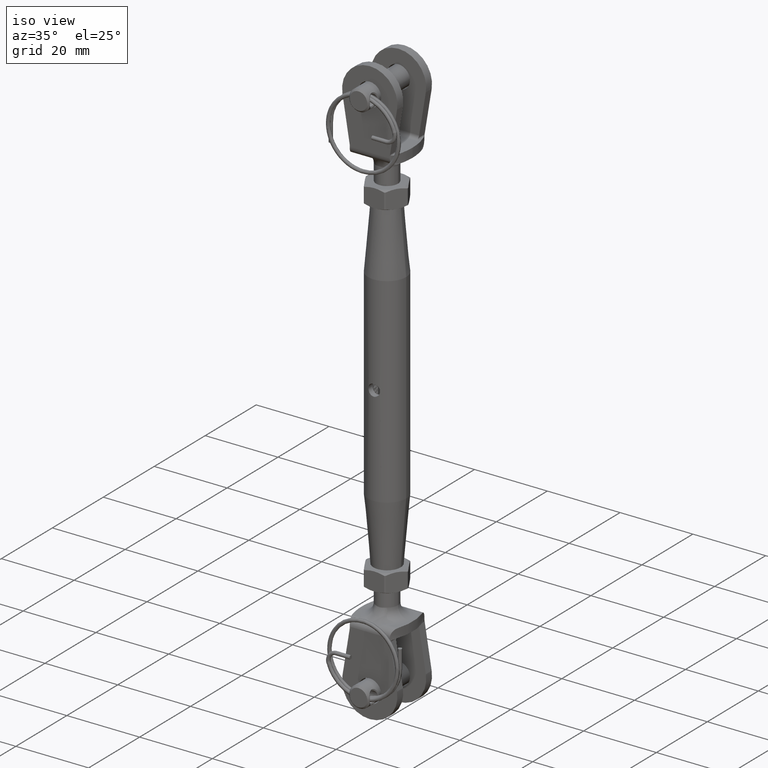
[diagram: clean part render]
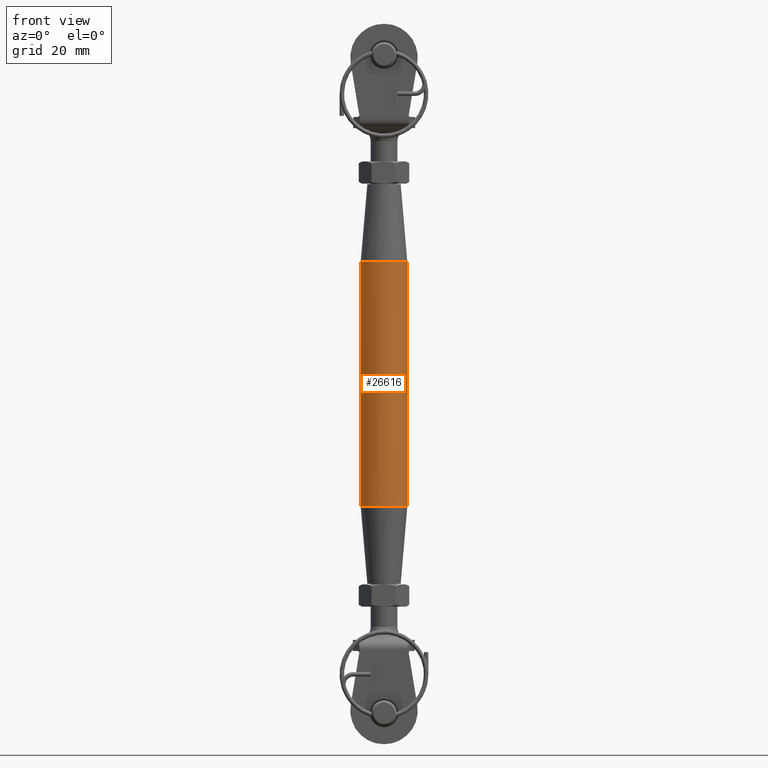
[diagram: tour spotlight — one face highlighted and labeled with its STEP entity id]
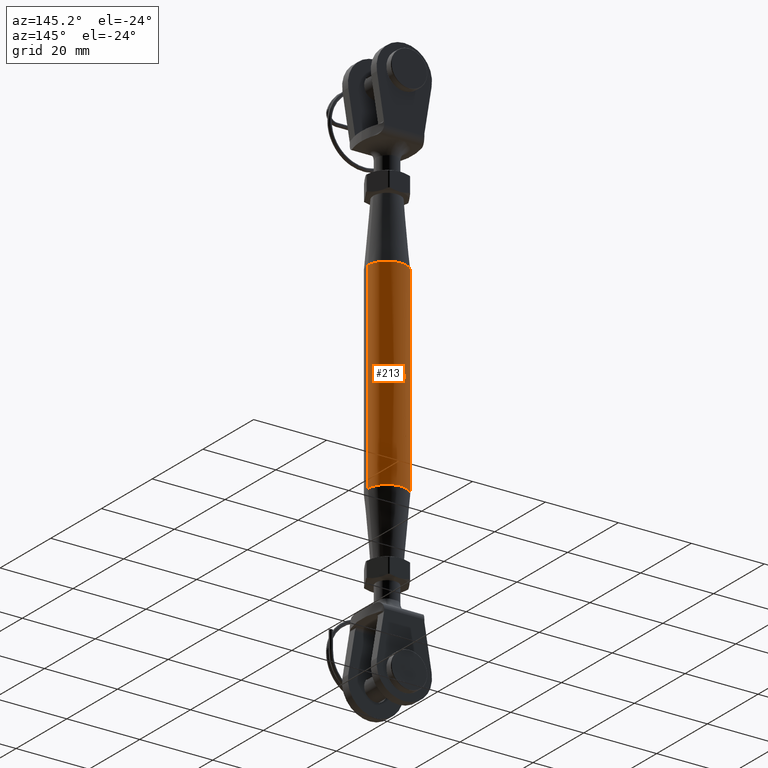
[diagram: tour spotlight — one face highlighted and labeled with its STEP entity id]
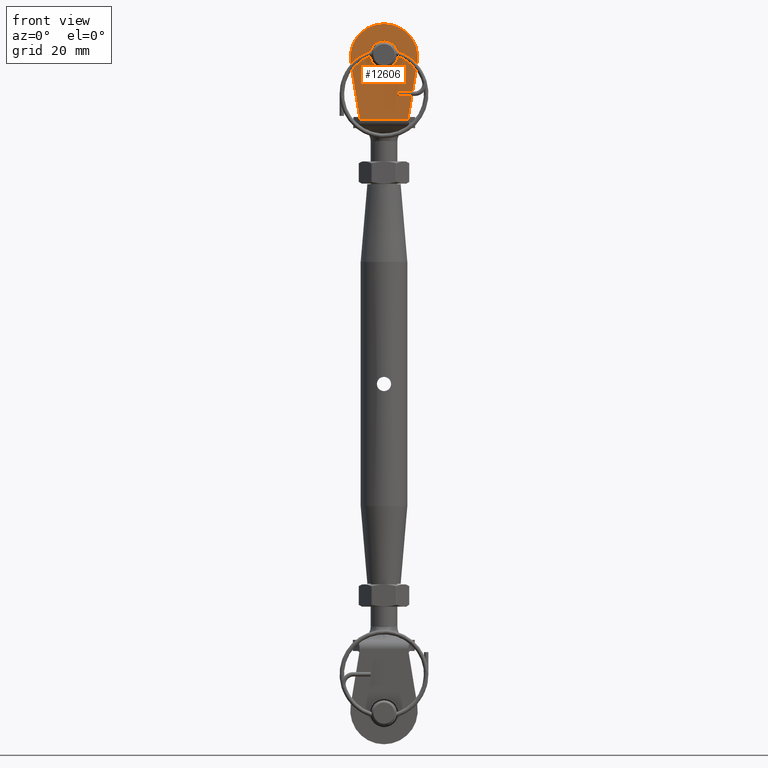
[diagram: tour spotlight — one face highlighted and labeled with its STEP entity id]
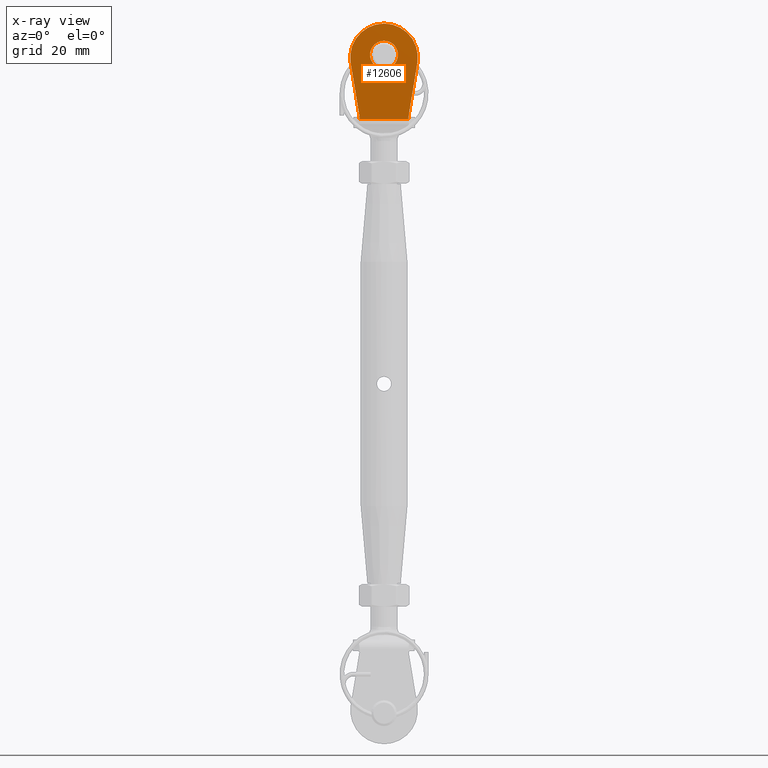
[diagram: x-ray of the same camera — body ghosted, this tour face saturated]
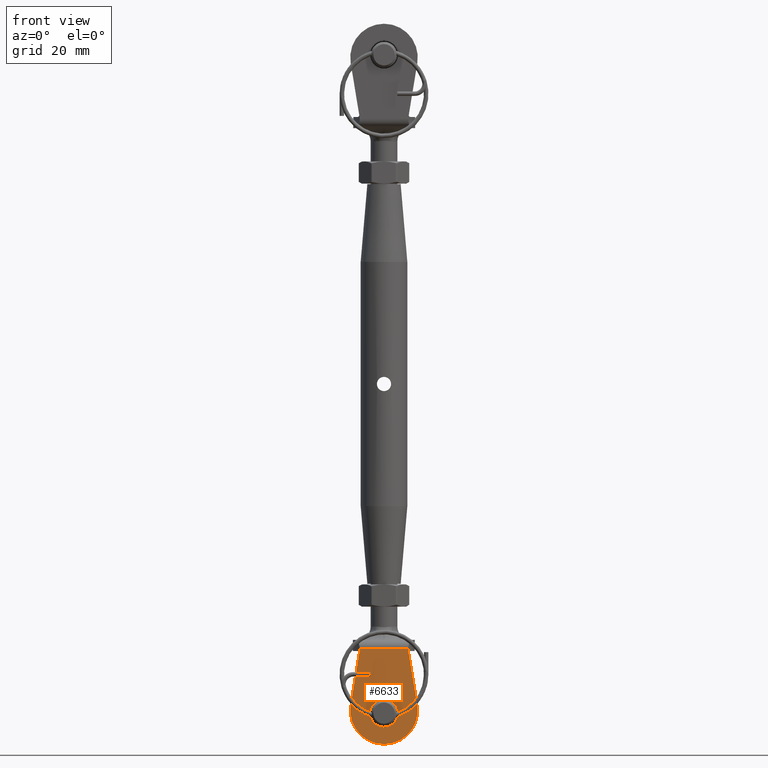
[diagram: tour spotlight — one face highlighted and labeled with its STEP entity id]
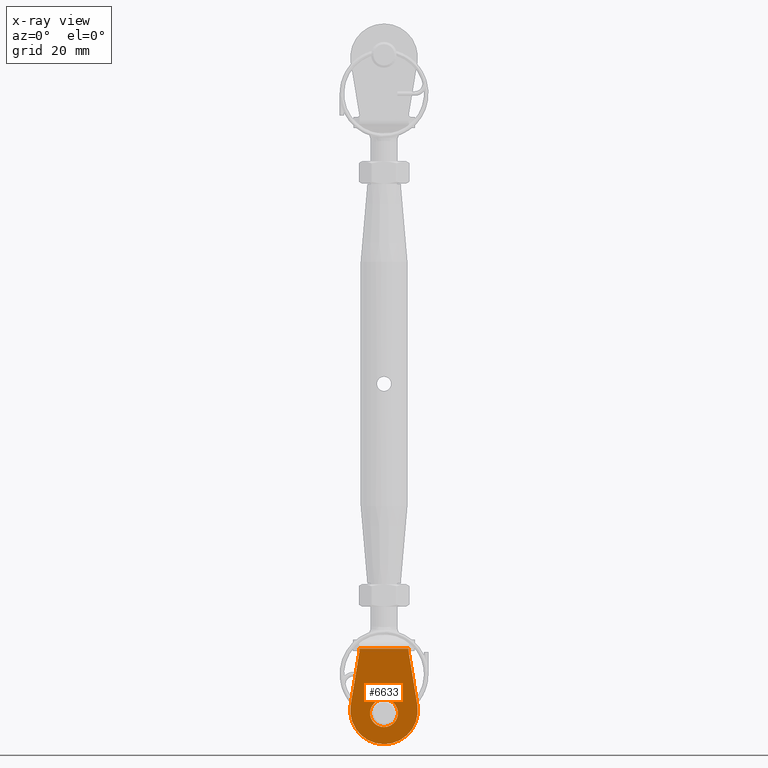
[diagram: x-ray of the same camera — body ghosted, this tour face saturated]
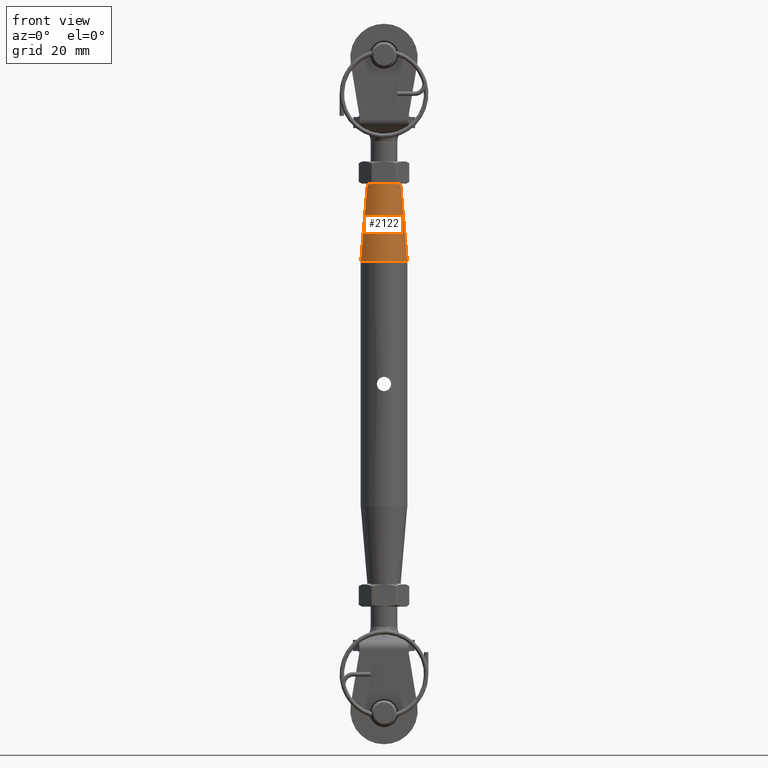
[diagram: tour spotlight — one face highlighted and labeled with its STEP entity id]
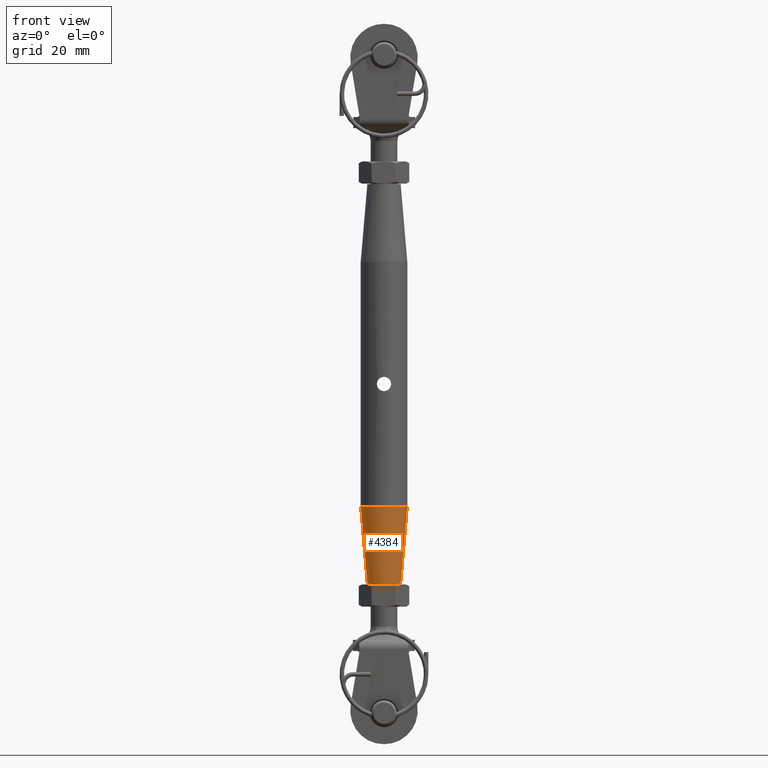
[diagram: tour spotlight — one face highlighted and labeled with its STEP entity id]
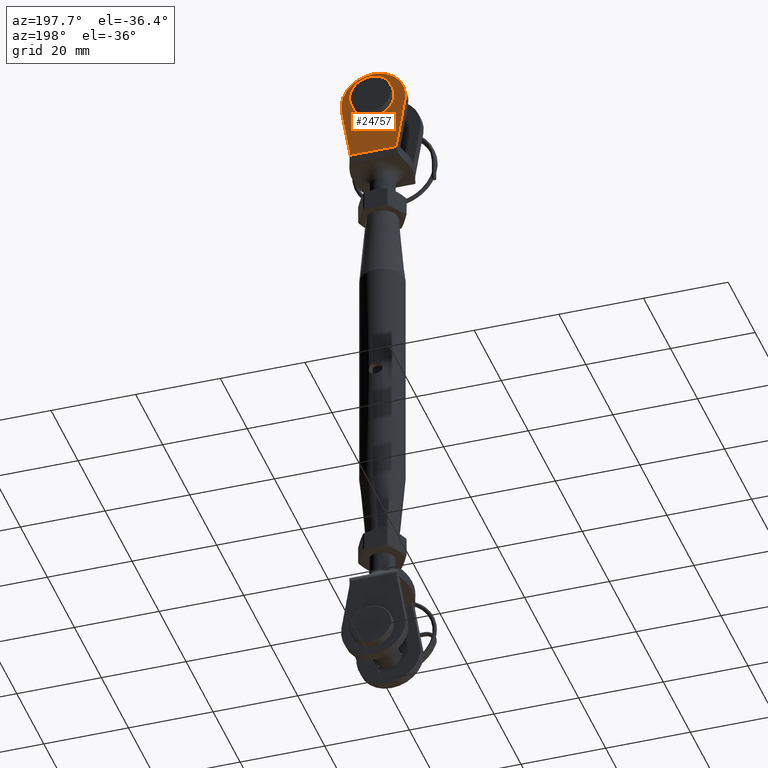
[diagram: tour spotlight — one face highlighted and labeled with its STEP entity id]
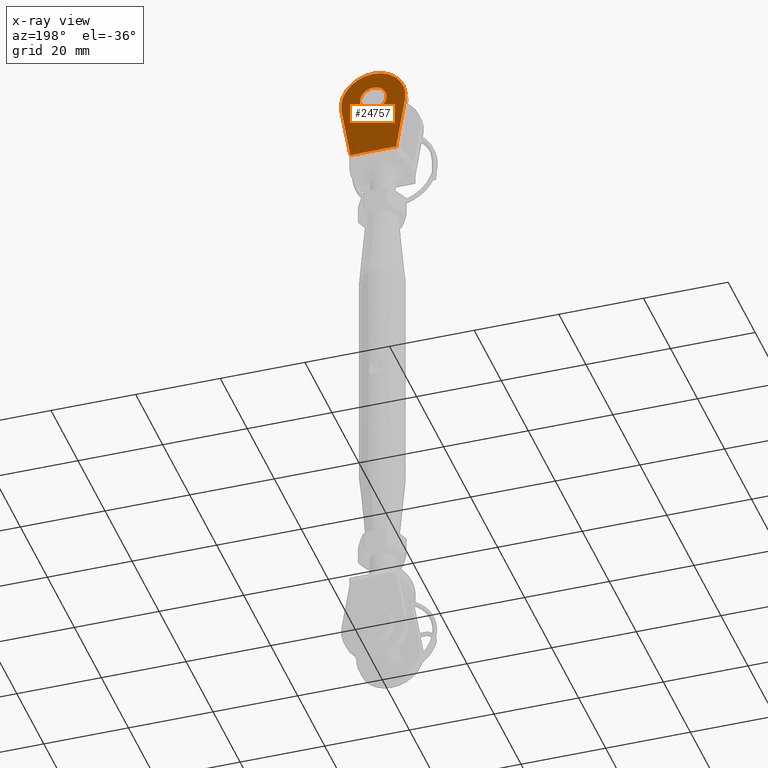
[diagram: x-ray of the same camera — body ghosted, this tour face saturated]
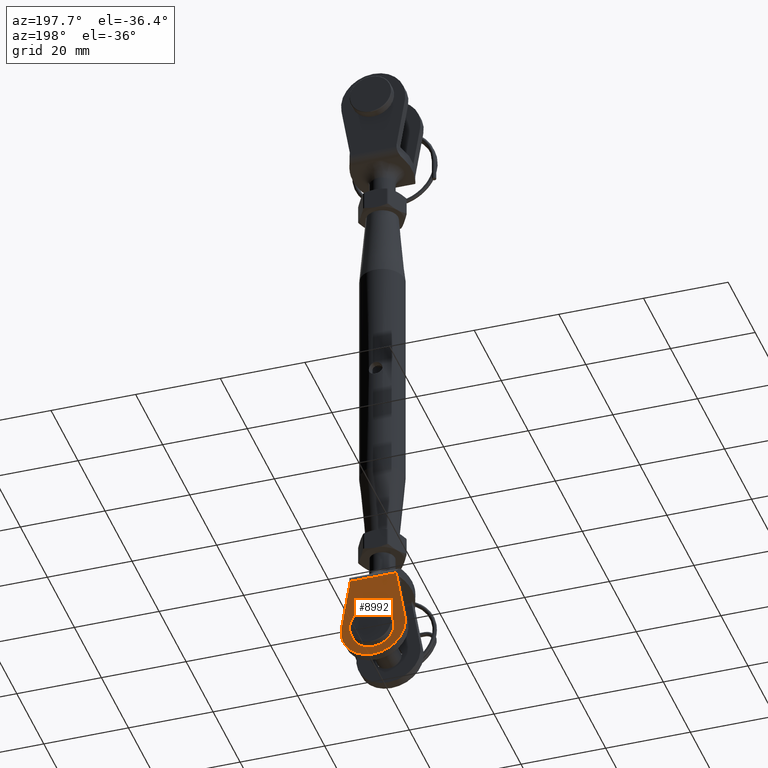
[diagram: tour spotlight — one face highlighted and labeled with its STEP entity id]
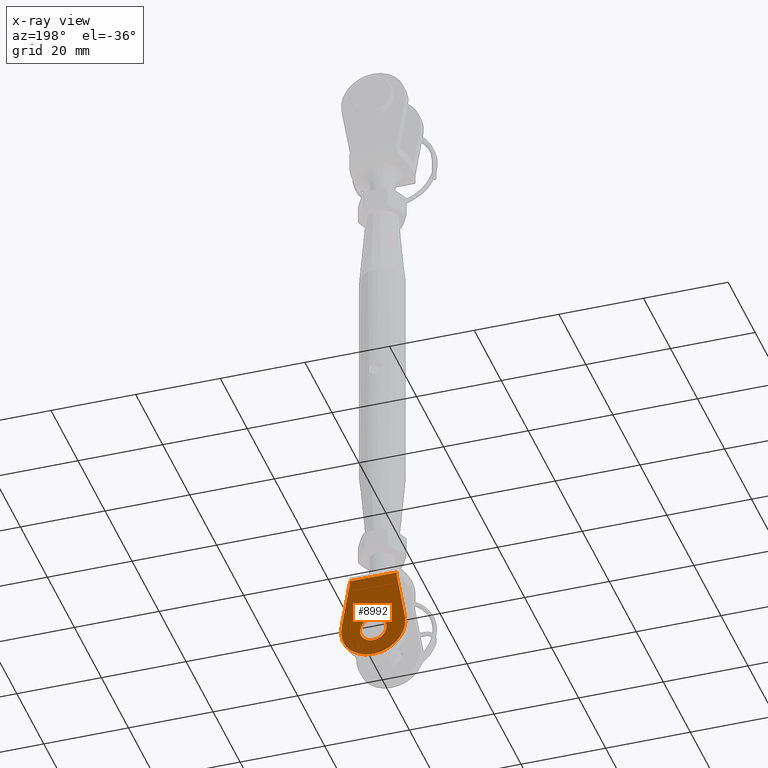
[diagram: x-ray of the same camera — body ghosted, this tour face saturated]
A machine part: a face-by-face anatomy tour. The part has 451 B-rep faces; the first image is the clean iso view, then the 8 largest visible faces are spotlighted one at a time (largest first), each with its STEP entity span.

Face 1 — front view, entity #26616. In plain terms, the highlighted cylindrical surface (edge-blend (fillet) strip) has radius 5.25 mm, axis along (0, 0, 1).
Definition (entity closure, byte-faithful):
#37 = CARTESIAN_POINT ( 'NONE',  ( -1.278937081518421800, -5.094083191782870800, -0.9838277844638736400 ) ) ;
#443 = DIRECTION ( 'NONE',  ( 1.000000000000000000, 0.0000000000000000000, 0.0000000000000000000 ) ) ;
#1799 = CARTESIAN_POINT ( 'NONE',  ( 0.4162830801971702000, -5.234481076649377200, 1.548442982876048900 ) ) ;
#1997 = CARTESIAN_POINT ( 'NONE',  ( 1.589482043919011800, -5.003649886068702200, -0.2110776533492665400 ) ) ;
#2489 = CARTESIAN_POINT ( 'NONE',  ( -1.600005353986819500, -5.000248280560182200, 0.1053702576494517100 ) ) ;
#3189 = CARTESIAN_POINT ( 'NONE',  ( 5.249999999999994700, 0.0000000000000000000, -27.49999999999999600 ) ) ;
#3802 = DIRECTION ( 'NONE',  ( 1.000000000000000000, 0.0000000000000000000, 0.0000000000000000000 ) ) ;
#3970 = ORIENTED_EDGE ( 'NONE', *, *, #22881, .T. ) ;
#4270 = CYLINDRICAL_SURFACE ( 'NONE', #17383, 5.249999999999994700 ) ;
#4350 = CARTESIAN_POINT ( 'NONE',  ( 1.557254093975790400, -5.014419824363751700, 0.4222786920249948500 ) ) ;
#4559 = CARTESIAN_POINT ( 'NONE',  ( -0.2096154724478001600, -5.249999999999992900, -1.600000000000000100 ) ) ;
#4754 = CARTESIAN_POINT ( 'NONE',  ( -0.8042626170835999200, -5.188773425089785000, -1.387087036398271500 ) ) ;
#4859 = CARTESIAN_POINT ( 'NONE',  ( -0.5189254497891497800, -5.225194792508152600, 1.517118404587704900 ) ) ;
#5582 = DIRECTION ( 'NONE',  ( -0.0000000000000000000, -0.0000000000000000000, 1.000000000000000000 ) ) ;
#6117 = LINE ( 'NONE', #9598, #28782 ) ;
#6351 = CARTESIAN_POINT ( 'NONE',  ( 1.599902386275905600, -5.000281228576617400, 0.2108802262902995900 ) ) ;
#6451 = CARTESIAN_POINT ( 'NONE',  ( 0.2109993058025803900, -5.246780260900915300, -1.589526257840522500 ) ) ;
#6551 = CARTESIAN_POINT ( 'NONE',  ( 1.600048548837804200, -5.000234458900777700, -0.1043272266713480600 ) ) ;
#6759 = ORIENTED_EDGE ( 'NONE', *, *, #18366, .F. ) ;
#6851 = CARTESIAN_POINT ( 'NONE',  ( -1.589686788606337100, -5.003584696706920600, 0.2096467269067538700 ) ) ;
#6930 = AXIS2_PLACEMENT_3D ( 'NONE', #23293, #16425, #443 ) ;
#6950 = CARTESIAN_POINT ( 'NONE',  ( -1.058486122922061700, -5.142736877438066400, 1.204309855378374400 ) ) ;
#7843 = CARTESIAN_POINT ( 'NONE',  ( -2.374709265359099400E-017, -5.249999999999994700, 1.600000000000000100 ) ) ;
#8003 = B_SPLINE_CURVE_WITH_KNOTS ( 'NONE', 3,
 ( #10868, #15615, #12949, #1799, #24670, #8520, #19899, #24569, #15514, #26748, #10768, #4350, #6351, #6551, #1997, #22475, #29015, #17799, #17602, #13045, #28816, #28922, #8901, #17703, #20001, #6451, #26854, #13240 ),
 .UNSPECIFIED., .F., .F.,
 ( 4, 2, 2, 2, 2, 2, 2, 2, 2, 2, 2, 2, 2, 4 ),
 ( 2.305781448519787400E-020, 0.0003145275819962597700, 0.0006290551639925194300, 0.0009435827459887789900, 0.001258110327985038900, 0.001887165491977558200, 0.002516220655970077700, 0.002830748237966337300, 0.003145275819962597300, 0.003774330983955116000, 0.004088858565951375100, 0.004403386147947634600, 0.004717913729943894200, 0.005032441311940152900 ),
 .UNSPECIFIED. ) ;
#8520 = CARTESIAN_POINT ( 'NONE',  ( 0.7117765070956371100, -5.202438470895582900, 1.436787669043761800 ) ) ;
#8718 = VERTEX_POINT ( 'NONE', #3189 ) ;
#8901 = CARTESIAN_POINT ( 'NONE',  ( 0.7104249149613881500, -5.202617014219879500, -1.437428478110111400 ) ) ;
#8919 = CARTESIAN_POINT ( 'NONE',  ( -0.1063695221821413400, -5.249999999999994700, 1.600000000000000500 ) ) ;
#9018 = CARTESIAN_POINT ( 'NONE',  ( 5.249999999999994700, 0.0000000000000000000, 27.49999999999999600 ) ) ;
#9027 = CIRCLE ( 'NONE', #6930, 5.249999999999994700 ) ;
#9116 = CARTESIAN_POINT ( 'NONE',  ( -1.548579018072315600, -5.016459600931257900, 0.4158832297152974500 ) ) ;
#9302 = CARTESIAN_POINT ( 'NONE',  ( 1.959255867029006400E-016, -5.249999999999994700, -1.600000000000000100 ) ) ;
#9598 = CARTESIAN_POINT ( 'NONE',  ( 5.249999999999994700, 0.0000000000000000000, 45.00000000000000000 ) ) ;
#9729 = LINE ( 'NONE', #19128, #25686 ) ;
#10041 = CARTESIAN_POINT ( 'NONE',  ( 0.0000000000000000000, 0.0000000000000000000, 45.00000000000000000 ) ) ;
#10768 = CARTESIAN_POINT ( 'NONE',  ( 1.397298114182272200, -5.061324378883377100, 0.8067946374669120500 ) ) ;
#10868 = CARTESIAN_POINT ( 'NONE',  ( -2.374709265359099400E-017, -5.249999999999994700, 1.600000000000000100 ) ) ;
#11265 = EDGE_LOOP ( 'NONE', ( #13218, #3970 ) ) ;
#11357 = CARTESIAN_POINT ( 'NONE',  ( -1.397275108734270100, -5.061333214368634300, 0.8069569356614104700 ) ) ;
#11450 = CARTESIAN_POINT ( 'NONE',  ( -0.9773072109988240100, -5.158980386615734700, -1.271109522862605300 ) ) ;
#11552 = CARTESIAN_POINT ( 'NONE',  ( -0.8034962965385366000, -5.188895068164506500, 1.387544260406840900 ) ) ;
#11648 = DIRECTION ( 'NONE',  ( -0.0000000000000000000, -0.0000000000000000000, 1.000000000000000000 ) ) ;
#12046 = VERTEX_POINT ( 'NONE', #9018 ) ;
#12193 = VERTEX_POINT ( 'NONE', #13937 ) ;
#12289 = DIRECTION ( 'NONE',  ( 1.000000000000000000, 0.0000000000000000000, 0.0000000000000000000 ) ) ;
#12364 = ORIENTED_EDGE ( 'NONE', *, *, #15145, .T. ) ;
#12949 = CARTESIAN_POINT ( 'NONE',  ( 0.2108958006641764300, -5.246771074281887200, 1.589493704089052900 ) ) ;
#12980 = CIRCLE ( 'NONE', #16333, 5.249999999999994700 ) ;
#13045 = CARTESIAN_POINT ( 'NONE',  ( 1.057157065757537500, -5.143018139686955900, -1.205534860322408300 ) ) ;
#13218 = ORIENTED_EDGE ( 'NONE', *, *, #16051, .T. ) ;
#13240 = CARTESIAN_POINT ( 'NONE',  ( 1.959255867029006400E-016, -5.249999999999994700, -1.600000000000000100 ) ) ;
#13324 = ORIENTED_EDGE ( 'NONE', *, *, #19145, .F. ) ;
#13452 = CARTESIAN_POINT ( 'NONE',  ( -1.396231138181457600, -5.061637721279983500, -0.8093835085889714600 ) ) ;
#13484 = FACE_BOUND ( 'NONE', #11265, .T. ) ;
#13552 = CARTESIAN_POINT ( 'NONE',  ( -1.057454549407599100, -5.142956910354103100, -1.205275556845327100 ) ) ;
#13654 = CARTESIAN_POINT ( 'NONE',  ( -1.278399798940668400, -5.094186471458298700, 0.9842328762994507800 ) ) ;
#13937 = CARTESIAN_POINT ( 'NONE',  ( -5.249999999999994700, 6.429395695523597300E-016, 27.49999999999999600 ) ) ;
#15145 = EDGE_CURVE ( 'NONE', #26082, #8718, #12980, .T. ) ;
#15514 = CARTESIAN_POINT ( 'NONE',  ( 1.058510369405336800, -5.142731803346703300, 1.204288002949135200 ) ) ;
#15593 = VERTEX_POINT ( 'NONE', #7843 ) ;
#15615 = CARTESIAN_POINT ( 'NONE',  ( 0.1063980416641017600, -5.249999999999994700, 1.600000000000000300 ) ) ;
#16051 = EDGE_CURVE ( 'NONE', #15593, #17681, #8003, .T. ) ;
#16103 = CARTESIAN_POINT ( 'NONE',  ( -1.599994641885524000, -5.000251708261212800, -0.1055327907392481600 ) ) ;
#16333 = AXIS2_PLACEMENT_3D ( 'NONE', #17543, #26587, #3802 ) ;
#16425 = DIRECTION ( 'NONE',  ( -0.0000000000000000000, -0.0000000000000000000, 1.000000000000000000 ) ) ;
#17297 = ORIENTED_EDGE ( 'NONE', *, *, #22929, .T. ) ;
#17383 = AXIS2_PLACEMENT_3D ( 'NONE', #10041, #21438, #12289 ) ;
#17543 = CARTESIAN_POINT ( 'NONE',  ( 0.0000000000000000000, 0.0000000000000000000, -27.49999999999999600 ) ) ;
#17602 = CARTESIAN_POINT ( 'NONE',  ( 1.278656735195208500, -5.094153859166475200, -0.9841841281354897200 ) ) ;
#17681 = VERTEX_POINT ( 'NONE', #25727 ) ;
#17703 = CARTESIAN_POINT ( 'NONE',  ( 0.5175683692868602300, -5.225327773409224700, -1.517572789883103100 ) ) ;
#17799 = CARTESIAN_POINT ( 'NONE',  ( 1.396581532758698600, -5.061537333680791000, -0.8086620974159640700 ) ) ;
#18199 = CARTESIAN_POINT ( 'NONE',  ( -0.4212678802837246400, -5.236674817083578400, -1.557619241382979500 ) ) ;
#18366 = EDGE_CURVE ( 'NONE', #12193, #12046, #9027, .T. ) ;
#19030 = EDGE_LOOP ( 'NONE', ( #13324, #12364, #17297, #6759 ) ) ;
#19128 = CARTESIAN_POINT ( 'NONE',  ( -5.249999999999994700, 6.429395695523597300E-016, 45.00000000000000000 ) ) ;
#19145 = EDGE_CURVE ( 'NONE', #26082, #12193, #9729, .T. ) ;
#19887 = FACE_OUTER_BOUND ( 'NONE', #19030, .T. ) ;
#19899 = CARTESIAN_POINT ( 'NONE',  ( 0.8034497744628732500, -5.188902934119536100, 1.387574653435877900 ) ) ;
#20001 = CARTESIAN_POINT ( 'NONE',  ( 0.4177393544949696800, -5.234378439216520500, -1.548098273082103800 ) ) ;
#20381 = B_SPLINE_CURVE_WITH_KNOTS ( 'NONE', 3,
 ( #9302, #4559, #18199, #22864, #4754, #11450, #13552, #37, #13452, #20400, #27338, #20494, #16103, #2489, #6851, #9116, #24972, #11357, #13654, #6950, #22770, #11552, #27431, #4859, #20682, #22488, #8919, #29327 ),
 .UNSPECIFIED., .F., .F.,
 ( 4, 2, 2, 2, 2, 2, 2, 2, 2, 2, 2, 2, 2, 4 ),
 ( 0.005032441311940152900, 0.005661327860729601200, 0.005975771135124325300, 0.006290214409519049400, 0.006919100958308496900, 0.007233544232703221000, 0.007547987507097944300, 0.007862430781492669300, 0.008176874055887392600, 0.008805760604676839100, 0.009120203879071562400, 0.009434647153466285700, 0.009749090427861009000, 0.01006353370225573400 ),
 .UNSPECIFIED. ) ;
#20400 = CARTESIAN_POINT ( 'NONE',  ( -1.517838814377063400, -5.025977495646829500, -0.5170165349108792900 ) ) ;
#20494 = CARTESIAN_POINT ( 'NONE',  ( -1.589349047076391100, -5.003691988293493200, -0.2119134838176628100 ) ) ;
#20682 = CARTESIAN_POINT ( 'NONE',  ( -0.4167652140935814200, -5.234446499770350600, 1.548326795929603200 ) ) ;
#21438 = DIRECTION ( 'NONE',  ( -0.0000000000000000000, -0.0000000000000000000, 1.000000000000000000 ) ) ;
#22475 = CARTESIAN_POINT ( 'NONE',  ( 1.548309588139832300, -5.016542910169366800, -0.4168265382130269000 ) ) ;
#22488 = CARTESIAN_POINT ( 'NONE',  ( -0.2109941769050129600, -5.246770898366798400, 1.589493808727883400 ) ) ;
#22770 = CARTESIAN_POINT ( 'NONE',  ( -0.9768842470238223700, -5.159063431950590600, 1.271448992707065100 ) ) ;
#22864 = CARTESIAN_POINT ( 'NONE',  ( -0.7106295405312909000, -5.202589556925787800, -1.437329724922459000 ) ) ;
#22881 = EDGE_CURVE ( 'NONE', #17681, #15593, #20381, .T. ) ;
#22929 = EDGE_CURVE ( 'NONE', #8718, #12046, #6117, .T. ) ;
#23293 = CARTESIAN_POINT ( 'NONE',  ( 0.0000000000000000000, 0.0000000000000000000, 27.49999999999999600 ) ) ;
#24569 = CARTESIAN_POINT ( 'NONE',  ( 0.9769147516520541000, -5.159058321806739400, 1.271429324400984000 ) ) ;
#24670 = CARTESIAN_POINT ( 'NONE',  ( 0.5182659986295187200, -5.225264796560281900, 1.517361181997884900 ) ) ;
#24972 = CARTESIAN_POINT ( 'NONE',  ( -1.517458207030651700, -5.026088290012934200, 0.5178898495726919100 ) ) ;
#25686 = VECTOR ( 'NONE', #5582, 1000.000000000000000 ) ;
#25727 = CARTESIAN_POINT ( 'NONE',  ( 1.959255867029006400E-016, -5.249999999999994700, -1.600000000000000100 ) ) ;
#26082 = VERTEX_POINT ( 'NONE', #29074 ) ;
#26587 = DIRECTION ( 'NONE',  ( -0.0000000000000000000, -0.0000000000000000000, 1.000000000000000000 ) ) ;
#26616 = ADVANCED_FACE ( 'NONE', ( #19887, #13484 ), #4270, .T. ) ;
#26748 = CARTESIAN_POINT ( 'NONE',  ( 1.278407094807621800, -5.094184303017977200, 0.9842207499788301300 ) ) ;
#26854 = CARTESIAN_POINT ( 'NONE',  ( 0.1048358369644239600, -5.249999999999993800, -1.600000000000000300 ) ) ;
#27338 = CARTESIAN_POINT ( 'NONE',  ( -1.548240222772684100, -5.016564174785759000, -0.4170011158919868000 ) ) ;
#27431 = CARTESIAN_POINT ( 'NONE',  ( -0.7119483475335768300, -5.202410382941485200, 1.436684177688967200 ) ) ;
#28782 = VECTOR ( 'NONE', #11648, 1000.000000000000000 ) ;
#28816 = CARTESIAN_POINT ( 'NONE',  ( 0.9770359415059869400, -5.159030503044320400, -1.271310024223499400 ) ) ;
#28922 = CARTESIAN_POINT ( 'NONE',  ( 0.8041367738073362800, -5.188791671607846800, -1.387152643978438100 ) ) ;
#29015 = CARTESIAN_POINT ( 'NONE',  ( 1.517867062595196000, -5.025968028127580000, -0.5168879681794006400 ) ) ;
#29074 = CARTESIAN_POINT ( 'NONE',  ( -5.249999999999994700, 6.429395695523597300E-016, -27.49999999999999600 ) ) ;
#29327 = CARTESIAN_POINT ( 'NONE',  ( -2.374709265359099400E-017, -5.249999999999994700, 1.600000000000000100 ) ) ;

Face 2 — auxiliary view, entity #213. In plain terms, the highlighted cylindrical surface (edge-blend (fillet) strip) has radius 5.25 mm, axis along (0, 0, 1).
Definition (entity closure, byte-faithful):
#213 = ADVANCED_FACE ( 'NONE', ( #1866, #29123 ), #5734, .T. ) ;
#1285 = ORIENTED_EDGE ( 'NONE', *, *, #19145, .T. ) ;
#1481 = CARTESIAN_POINT ( 'NONE',  ( 1.057454549407599100, 5.142956910354103100, -1.205275556845327100 ) ) ;
#1866 = FACE_BOUND ( 'NONE', #2364, .T. ) ;
#1919 = CARTESIAN_POINT ( 'NONE',  ( -1.058510369405336800, 5.142731803346703300, 1.204288002949135200 ) ) ;
#2364 = EDGE_LOOP ( 'NONE', ( #7321, #7917 ) ) ;
#2418 = CARTESIAN_POINT ( 'NONE',  ( 2.374709265359099400E-017, 5.249999999999994700, 1.600000000000000100 ) ) ;
#2636 = DIRECTION ( 'NONE',  ( 1.000000000000000000, 0.0000000000000000000, 0.0000000000000000000 ) ) ;
#3021 = CARTESIAN_POINT ( 'NONE',  ( 0.0000000000000000000, 0.0000000000000000000, 27.49999999999999600 ) ) ;
#3189 = CARTESIAN_POINT ( 'NONE',  ( 5.249999999999994700, 0.0000000000000000000, -27.49999999999999600 ) ) ;
#4039 = CARTESIAN_POINT ( 'NONE',  ( 0.2096154724478001600, 5.249999999999992900, -1.600000000000000100 ) ) ;
#4183 = CARTESIAN_POINT ( 'NONE',  ( -0.9770359415059869400, 5.159030503044320400, -1.271310024223499400 ) ) ;
#4278 = CARTESIAN_POINT ( 'NONE',  ( -1.589482043919011800, 5.003649886068702200, -0.2110776533492665400 ) ) ;
#4373 = CARTESIAN_POINT ( 'NONE',  ( -1.278407094807621800, 5.094184303017977200, 0.9842207499788301300 ) ) ;
#4472 = CARTESIAN_POINT ( 'NONE',  ( -1.557254093975790400, 5.014419824363751700, 0.4222786920249948500 ) ) ;
#4614 = CARTESIAN_POINT ( 'NONE',  ( 0.0000000000000000000, 0.0000000000000000000, 45.00000000000000000 ) ) ;
#4826 = CIRCLE ( 'NONE', #18658, 5.249999999999994700 ) ;
#5075 = EDGE_CURVE ( 'NONE', #7474, #8492, #26589, .T. ) ;
#5582 = DIRECTION ( 'NONE',  ( -0.0000000000000000000, -0.0000000000000000000, 1.000000000000000000 ) ) ;
#5734 = CYLINDRICAL_SURFACE ( 'NONE', #11198, 5.249999999999994700 ) ;
#5823 = CARTESIAN_POINT ( 'NONE',  ( 0.8042626170835999200, 5.188773425089785000, -1.387087036398271500 ) ) ;
#6117 = LINE ( 'NONE', #9598, #28782 ) ;
#6129 = CARTESIAN_POINT ( 'NONE',  ( 1.600005353986819500, 5.000248280560182200, 0.1053702576494517100 ) ) ;
#6572 = CARTESIAN_POINT ( 'NONE',  ( -1.517867062595196000, 5.025968028127580000, -0.5168879681794006400 ) ) ;
#6755 = CARTESIAN_POINT ( 'NONE',  ( -1.548309588139832300, 5.016542910169366800, -0.4168265382130269000 ) ) ;
#7321 = ORIENTED_EDGE ( 'NONE', *, *, #5075, .T. ) ;
#7474 = VERTEX_POINT ( 'NONE', #2418 ) ;
#7917 = ORIENTED_EDGE ( 'NONE', *, *, #10766, .T. ) ;
#8300 = CARTESIAN_POINT ( 'NONE',  ( 1.959613890225554700E-016, 5.249999999999994700, -1.600000000000000100 ) ) ;
#8405 = CARTESIAN_POINT ( 'NONE',  ( 1.397275108734270100, 5.061333214368634300, 0.8069569356614104700 ) ) ;
#8492 = VERTEX_POINT ( 'NONE', #15945 ) ;
#8498 = CARTESIAN_POINT ( 'NONE',  ( 0.9768842470238223700, 5.159063431950590600, 1.271448992707065100 ) ) ;
#8718 = VERTEX_POINT ( 'NONE', #3189 ) ;
#8830 = CARTESIAN_POINT ( 'NONE',  ( -0.4177393544949696800, 5.234378439216520500, -1.548098273082103800 ) ) ;
#8924 = CARTESIAN_POINT ( 'NONE',  ( -0.1048358369644239600, 5.249999999999993800, -1.600000000000000300 ) ) ;
#9018 = CARTESIAN_POINT ( 'NONE',  ( 5.249999999999994700, 0.0000000000000000000, 27.49999999999999600 ) ) ;
#9020 = CARTESIAN_POINT ( 'NONE',  ( 1.959613890225554700E-016, 5.249999999999994700, -1.600000000000000100 ) ) ;
#9598 = CARTESIAN_POINT ( 'NONE',  ( 5.249999999999994700, 0.0000000000000000000, 45.00000000000000000 ) ) ;
#9729 = LINE ( 'NONE', #19128, #25686 ) ;
#9838 = DIRECTION ( 'NONE',  ( -0.0000000000000000000, -0.0000000000000000000, 1.000000000000000000 ) ) ;
#10345 = CARTESIAN_POINT ( 'NONE',  ( 0.9773072109988240100, 5.158980386615734700, -1.271109522862605300 ) ) ;
#10644 = CARTESIAN_POINT ( 'NONE',  ( 1.278399798940668400, 5.094186471458298700, 0.9842328762994507800 ) ) ;
#10743 = CARTESIAN_POINT ( 'NONE',  ( 0.7119483475335768300, 5.202410382941485200, 1.436684177688967200 ) ) ;
#10766 = EDGE_CURVE ( 'NONE', #8492, #7474, #22448, .T. ) ;
#10887 = CARTESIAN_POINT ( 'NONE',  ( -0.4162830801971702000, 5.234481076649377200, 1.548442982876048900 ) ) ;
#10983 = CARTESIAN_POINT ( 'NONE',  ( -1.396581532758698600, 5.061537333680791000, -0.8086620974159640700 ) ) ;
#11173 = CARTESIAN_POINT ( 'NONE',  ( -0.7117765070956371100, 5.202438470895582900, 1.436787669043761800 ) ) ;
#11198 = AXIS2_PLACEMENT_3D ( 'NONE', #4614, #27395, #2636 ) ;
#11298 = ORIENTED_EDGE ( 'NONE', *, *, #17003, .F. ) ;
#11648 = DIRECTION ( 'NONE',  ( -0.0000000000000000000, -0.0000000000000000000, 1.000000000000000000 ) ) ;
#12046 = VERTEX_POINT ( 'NONE', #9018 ) ;
#12193 = VERTEX_POINT ( 'NONE', #13937 ) ;
#12332 = ORIENTED_EDGE ( 'NONE', *, *, #22929, .F. ) ;
#12613 = CARTESIAN_POINT ( 'NONE',  ( 1.589349047076391100, 5.003691988293493200, -0.2119134838176628100 ) ) ;
#12814 = CARTESIAN_POINT ( 'NONE',  ( 1.548240222772684100, 5.016564174785759000, -0.4170011158919868000 ) ) ;
#13022 = CARTESIAN_POINT ( 'NONE',  ( 0.4167652140935814200, 5.234446499770350600, 1.548326795929603200 ) ) ;
#13166 = CARTESIAN_POINT ( 'NONE',  ( -0.1063980416641017600, 5.249999999999994700, 1.600000000000000300 ) ) ;
#13367 = CARTESIAN_POINT ( 'NONE',  ( 2.374709265359099400E-017, 5.249999999999994700, 1.600000000000000100 ) ) ;
#13457 = CARTESIAN_POINT ( 'NONE',  ( -0.8041367738073362800, 5.188791671607846800, -1.387152643978438100 ) ) ;
#13745 = EDGE_LOOP ( 'NONE', ( #26952, #1285, #11298, #12332 ) ) ;
#13937 = CARTESIAN_POINT ( 'NONE',  ( -5.249999999999994700, 6.429395695523597300E-016, 27.49999999999999600 ) ) ;
#14298 = CARTESIAN_POINT ( 'NONE',  ( 0.0000000000000000000, 0.0000000000000000000, -27.49999999999999600 ) ) ;
#14906 = CARTESIAN_POINT ( 'NONE',  ( 1.599994641885524000, 5.000251708261212800, -0.1055327907392481600 ) ) ;
#15010 = CARTESIAN_POINT ( 'NONE',  ( 0.7106295405312909000, 5.202589556925787800, -1.437329724922459000 ) ) ;
#15102 = CARTESIAN_POINT ( 'NONE',  ( 1.589686788606337100, 5.003584696706920600, 0.2096467269067538700 ) ) ;
#15200 = CARTESIAN_POINT ( 'NONE',  ( 0.8034962965385366000, 5.188895068164506500, 1.387544260406840900 ) ) ;
#15292 = CARTESIAN_POINT ( 'NONE',  ( 0.1063695221821413400, 5.249999999999994700, 1.600000000000000500 ) ) ;
#15336 = CARTESIAN_POINT ( 'NONE',  ( -1.600048548837804200, 5.000234458900777700, -0.1043272266713480600 ) ) ;
#15945 = CARTESIAN_POINT ( 'NONE',  ( 1.959613890225554700E-016, 5.249999999999994700, -1.600000000000000100 ) ) ;
#16556 = DIRECTION ( 'NONE',  ( 1.000000000000000000, 0.0000000000000000000, 0.0000000000000000000 ) ) ;
#17003 = EDGE_CURVE ( 'NONE', #12046, #12193, #4826, .T. ) ;
#17818 = CARTESIAN_POINT ( 'NONE',  ( -0.8034497744628732500, 5.188902934119536100, 1.387574653435877900 ) ) ;
#17963 = CARTESIAN_POINT ( 'NONE',  ( 2.374709265359099400E-017, 5.249999999999994700, 1.600000000000000100 ) ) ;
#18658 = AXIS2_PLACEMENT_3D ( 'NONE', #3021, #9838, #16556 ) ;
#19128 = CARTESIAN_POINT ( 'NONE',  ( -5.249999999999994700, 6.429395695523597300E-016, 45.00000000000000000 ) ) ;
#19145 = EDGE_CURVE ( 'NONE', #26082, #12193, #9729, .T. ) ;
#19666 = CARTESIAN_POINT ( 'NONE',  ( 0.4212678802837246400, 5.236674817083578400, -1.557619241382979500 ) ) ;
#20203 = CARTESIAN_POINT ( 'NONE',  ( -0.5175683692868602300, 5.225327773409224700, -1.517572789883103100 ) ) ;
#20222 = CIRCLE ( 'NONE', #27482, 5.249999999999994700 ) ;
#21346 = DIRECTION ( 'NONE',  ( -0.0000000000000000000, -0.0000000000000000000, 1.000000000000000000 ) ) ;
#21953 = CARTESIAN_POINT ( 'NONE',  ( 1.517458207030651700, 5.026088290012934200, 0.5178898495726919100 ) ) ;
#22304 = CARTESIAN_POINT ( 'NONE',  ( -0.9769147516520541000, 5.159058321806739400, 1.271429324400984000 ) ) ;
#22396 = CARTESIAN_POINT ( 'NONE',  ( -0.7104249149613881500, 5.202617014219879500, -1.437428478110111400 ) ) ;
#22448 = B_SPLINE_CURVE_WITH_KNOTS ( 'NONE', 3,
 ( #8300, #4039, #19666, #15010, #5823, #10345, #1481, #26324, #24349, #26426, #12814, #12613, #14906, #6129, #15102, #28791, #21953, #8405, #10644, #26530, #8498, #15200, #10743, #26625, #13022, #28898, #15292, #17963 ),
 .UNSPECIFIED., .F., .F.,
 ( 4, 2, 2, 2, 2, 2, 2, 2, 2, 2, 2, 2, 2, 4 ),
 ( 0.005032441311940152900, 0.005661327860729601200, 0.005975771135124325300, 0.006290214409519049400, 0.006919100958308496900, 0.007233544232703221000, 0.007547987507097944300, 0.007862430781492669300, 0.008176874055887392600, 0.008805760604676839100, 0.009120203879071562400, 0.009434647153466285700, 0.009749090427861009000, 0.01006353370225573400 ),
 .UNSPECIFIED. ) ;
#22595 = CARTESIAN_POINT ( 'NONE',  ( -0.5182659986295187200, 5.225264796560281900, 1.517361181997884900 ) ) ;
#22929 = EDGE_CURVE ( 'NONE', #8718, #12046, #6117, .T. ) ;
#24349 = CARTESIAN_POINT ( 'NONE',  ( 1.396231138181457600, 5.061637721279983500, -0.8093835085889714600 ) ) ;
#24486 = CARTESIAN_POINT ( 'NONE',  ( -0.2108958006641764300, 5.246771074281887200, 1.589493704089052900 ) ) ;
#24590 = CARTESIAN_POINT ( 'NONE',  ( -1.599902386275905600, 5.000281228576617400, 0.2108802262902995900 ) ) ;
#25686 = VECTOR ( 'NONE', #5582, 1000.000000000000000 ) ;
#25899 = DIRECTION ( 'NONE',  ( 1.000000000000000000, 0.0000000000000000000, 0.0000000000000000000 ) ) ;
#26082 = VERTEX_POINT ( 'NONE', #29074 ) ;
#26324 = CARTESIAN_POINT ( 'NONE',  ( 1.278937081518421800, 5.094083191782870800, -0.9838277844638736400 ) ) ;
#26426 = CARTESIAN_POINT ( 'NONE',  ( 1.517838814377063400, 5.025977495646829500, -0.5170165349108792900 ) ) ;
#26530 = CARTESIAN_POINT ( 'NONE',  ( 1.058486122922061700, 5.142736877438066400, 1.204309855378374400 ) ) ;
#26589 = B_SPLINE_CURVE_WITH_KNOTS ( 'NONE', 3,
 ( #13367, #13166, #24486, #10887, #22595, #11173, #17818, #22304, #1919, #4373, #27060, #4472, #24590, #15336, #4278, #6755, #6572, #10983, #26773, #26877, #4183, #13457, #22396, #20203, #8830, #29224, #8924, #9020 ),
 .UNSPECIFIED., .F., .F.,
 ( 4, 2, 2, 2, 2, 2, 2, 2, 2, 2, 2, 2, 2, 4 ),
 ( 2.305781448519787400E-020, 0.0003145275819962597700, 0.0006290551639925194300, 0.0009435827459887789900, 0.001258110327985038900, 0.001887165491977558200, 0.002516220655970077700, 0.002830748237966337300, 0.003145275819962597300, 0.003774330983955116000, 0.004088858565951375100, 0.004403386147947634600, 0.004717913729943894200, 0.005032441311940152900 ),
 .UNSPECIFIED. ) ;
#26590 = EDGE_CURVE ( 'NONE', #8718, #26082, #20222, .T. ) ;
#26625 = CARTESIAN_POINT ( 'NONE',  ( 0.5189254497891497800, 5.225194792508152600, 1.517118404587704900 ) ) ;
#26773 = CARTESIAN_POINT ( 'NONE',  ( -1.278656735195208500, 5.094153859166475200, -0.9841841281354897200 ) ) ;
#26877 = CARTESIAN_POINT ( 'NONE',  ( -1.057157065757537500, 5.143018139686955900, -1.205534860322408300 ) ) ;
#26952 = ORIENTED_EDGE ( 'NONE', *, *, #26590, .T. ) ;
#27060 = CARTESIAN_POINT ( 'NONE',  ( -1.397298114182272200, 5.061324378883377100, 0.8067946374669120500 ) ) ;
#27395 = DIRECTION ( 'NONE',  ( -0.0000000000000000000, -0.0000000000000000000, 1.000000000000000000 ) ) ;
#27482 = AXIS2_PLACEMENT_3D ( 'NONE', #14298, #21346, #25899 ) ;
#28782 = VECTOR ( 'NONE', #11648, 1000.000000000000000 ) ;
#28791 = CARTESIAN_POINT ( 'NONE',  ( 1.548579018072315600, 5.016459600931257900, 0.4158832297152974500 ) ) ;
#28898 = CARTESIAN_POINT ( 'NONE',  ( 0.2109941769050129600, 5.246770898366798400, 1.589493808727883400 ) ) ;
#29074 = CARTESIAN_POINT ( 'NONE',  ( -5.249999999999994700, 6.429395695523597300E-016, -27.49999999999999600 ) ) ;
#29123 = FACE_OUTER_BOUND ( 'NONE', #13745, .T. ) ;
#29224 = CARTESIAN_POINT ( 'NONE',  ( -0.2109993058025803900, 5.246780260900915300, -1.589526257840522500 ) ) ;

Face 3 — front view, entity #12606. An x-ray twin of the same camera follows (body ghosted, this face saturated) — the face is partly hidden behind the body. In plain terms, the highlighted planar face has unit normal (0, 1, 0).
Definition (entity closure, byte-faithful):
#102 = VERTEX_POINT ( 'NONE', #6526 ) ;
#142 = CARTESIAN_POINT ( 'NONE',  ( 5.500000000000000000, -6.799999999999999800, 1.580774923414643100E-015 ) ) ;
#177 = CARTESIAN_POINT ( 'NONE',  ( 6.944473539419721200E-016, -6.799999999999999800, 20.99999999999999600 ) ) ;
#1565 = CARTESIAN_POINT ( 'NONE',  ( -7.500000000000000000, -6.799999999999999800, 12.16643967593877400 ) ) ;
#2012 = DIRECTION ( 'NONE',  ( 0.0000000000000000000, 1.000000000000000000, 0.0000000000000000000 ) ) ;
#2527 = ORIENTED_EDGE ( 'NONE', *, *, #13811, .F. ) ;
#2534 = VECTOR ( 'NONE', #6584, 1000.000000000000200 ) ;
#3355 = PLANE ( 'NONE',  #16517 ) ;
#3695 = DIRECTION ( 'NONE',  ( 0.0000000000000000000, 0.0000000000000000000, -1.000000000000000000 ) ) ;
#3828 = VECTOR ( 'NONE', #17325, 1000.000000000000200 ) ;
#4209 = AXIS2_PLACEMENT_3D ( 'NONE', #8630, #2012, #22297 ) ;
#5261 = FACE_BOUND ( 'NONE', #23211, .T. ) ;
#5830 = AXIS2_PLACEMENT_3D ( 'NONE', #15742, #11275, #24893 ) ;
#6174 = CARTESIAN_POINT ( 'NONE',  ( 5.500000000000000000, -6.799999999999999800, 1.580774923414643100E-015 ) ) ;
#6293 = ORIENTED_EDGE ( 'NONE', *, *, #23849, .F. ) ;
#6526 = CARTESIAN_POINT ( 'NONE',  ( 5.500000000000000000, -6.799999999999999800, -0.5000000000000004400 ) ) ;
#6584 = DIRECTION ( 'NONE',  ( -0.1622095469790640300, 0.0000000000000000000, 0.9867563340910696600 ) ) ;
#7223 = LINE ( 'NONE', #16062, #18522 ) ;
#7556 = VERTEX_POINT ( 'NONE', #13485 ) ;
#7972 = CARTESIAN_POINT ( 'NONE',  ( 6.944473539419721200E-016, -6.799999999999999800, 13.39933939019659600 ) ) ;
#8040 = VERTEX_POINT ( 'NONE', #24376 ) ;
#8289 = VERTEX_POINT ( 'NONE', #20145 ) ;
#8630 = CARTESIAN_POINT ( 'NONE',  ( 0.0000000000000000000, -6.799999999999999800, 14.00000000000000000 ) ) ;
#8638 = CIRCLE ( 'NONE', #16603, 7.600660609803402900 ) ;
#8761 = VERTEX_POINT ( 'NONE', #14555 ) ;
#8920 = EDGE_CURVE ( 'NONE', #8761, #19458, #26490, .T. ) ;
#9109 = VECTOR ( 'NONE', #26384, 1000.000000000000000 ) ;
#9766 = ORIENTED_EDGE ( 'NONE', *, *, #21164, .F. ) ;
#10728 = EDGE_CURVE ( 'NONE', #19458, #8761, #27265, .T. ) ;
#11111 = EDGE_CURVE ( 'NONE', #102, #23816, #21931, .T. ) ;
#11275 = DIRECTION ( 'NONE',  ( -0.0000000000000000000, 1.000000000000000000, -0.0000000000000000000 ) ) ;
#11964 = DIRECTION ( 'NONE',  ( 1.224646799147353200E-016, -0.0000000000000000000, 1.000000000000000000 ) ) ;
#12383 = DIRECTION ( 'NONE',  ( -0.0000000000000000000, 1.000000000000000000, -0.0000000000000000000 ) ) ;
#12490 = DIRECTION ( 'NONE',  ( 1.224646799147353200E-016, -0.0000000000000000000, 1.000000000000000000 ) ) ;
#12606 = ADVANCED_FACE ( 'NONE', ( #5261, #23342 ), #3355, .F. ) ;
#12683 = CARTESIAN_POINT ( 'NONE',  ( 5.500000000000000000, -6.799999999999999800, -0.5000000000000005600 ) ) ;
#13485 = CARTESIAN_POINT ( 'NONE',  ( -5.500000000000001800, -6.799999999999997200, 6.735557395310443000E-016 ) ) ;
#13811 = EDGE_CURVE ( 'NONE', #8289, #23816, #14434, .T. ) ;
#14434 = LINE ( 'NONE', #6174, #3828 ) ;
#14555 = CARTESIAN_POINT ( 'NONE',  ( 0.0000000000000000000, -6.799999999999999800, 17.15000000000000200 ) ) ;
#14916 = CIRCLE ( 'NONE', #5830, 7.600660609803402900 ) ;
#15109 = EDGE_CURVE ( 'NONE', #8040, #102, #15112, .T. ) ;
#15112 = LINE ( 'NONE', #12683, #9109 ) ;
#15742 = CARTESIAN_POINT ( 'NONE',  ( 6.944473539419721200E-016, -6.799999999999999800, 13.39933939019659600 ) ) ;
#15925 = CARTESIAN_POINT ( 'NONE',  ( -7.499999999999999100, -6.799999999999999800, 12.16643967593877200 ) ) ;
#16062 = CARTESIAN_POINT ( 'NONE',  ( -5.500000000000001800, -6.799999999999997200, -2.499999999999999100 ) ) ;
#16517 = AXIS2_PLACEMENT_3D ( 'NONE', #17192, #24057, #26334 ) ;
#16594 = VECTOR ( 'NONE', #12490, 1000.000000000000000 ) ;
#16603 = AXIS2_PLACEMENT_3D ( 'NONE', #7972, #12383, #3695 ) ;
#16804 = EDGE_LOOP ( 'NONE', ( #9766, #26459, #26972, #2527, #24678, #20750, #6293 ) ) ;
#17192 = CARTESIAN_POINT ( 'NONE',  ( 5.500000000000000000, -6.799999999999999800, -2.500000000000000900 ) ) ;
#17325 = DIRECTION ( 'NONE',  ( -0.1622095469790642000, 0.0000000000000000000, -0.9867563340910696600 ) ) ;
#17477 = DIRECTION ( 'NONE',  ( 0.0000000000000000000, 1.000000000000000000, 0.0000000000000000000 ) ) ;
#17944 = VERTEX_POINT ( 'NONE', #1565 ) ;
#18522 = VECTOR ( 'NONE', #11964, 1000.000000000000000 ) ;
#18551 = CARTESIAN_POINT ( 'NONE',  ( 5.500000000000000000, -6.799999999999999800, -2.500000000000000900 ) ) ;
#19337 = VERTEX_POINT ( 'NONE', #177 ) ;
#19339 = AXIS2_PLACEMENT_3D ( 'NONE', #22056, #17477, #19773 ) ;
#19458 = VERTEX_POINT ( 'NONE', #27210 ) ;
#19773 = DIRECTION ( 'NONE',  ( 0.0000000000000000000, 0.0000000000000000000, 1.000000000000000000 ) ) ;
#20145 = CARTESIAN_POINT ( 'NONE',  ( 7.500000000000000900, -6.799999999999999800, 12.16643967593877000 ) ) ;
#20709 = EDGE_CURVE ( 'NONE', #19337, #8289, #8638, .T. ) ;
#20715 = ORIENTED_EDGE ( 'NONE', *, *, #8920, .T. ) ;
#20750 = ORIENTED_EDGE ( 'NONE', *, *, #23711, .F. ) ;
#20938 = LINE ( 'NONE', #15925, #2534 ) ;
#21164 = EDGE_CURVE ( 'NONE', #8040, #7556, #7223, .T. ) ;
#21931 = LINE ( 'NONE', #18551, #16594 ) ;
#22056 = CARTESIAN_POINT ( 'NONE',  ( 0.0000000000000000000, -6.799999999999999800, 14.00000000000000000 ) ) ;
#22297 = DIRECTION ( 'NONE',  ( 0.0000000000000000000, 0.0000000000000000000, 1.000000000000000000 ) ) ;
#23211 = EDGE_LOOP ( 'NONE', ( #20715, #28464 ) ) ;
#23342 = FACE_OUTER_BOUND ( 'NONE', #16804, .T. ) ;
#23711 = EDGE_CURVE ( 'NONE', #17944, #19337, #14916, .T. ) ;
#23816 = VERTEX_POINT ( 'NONE', #142 ) ;
#23849 = EDGE_CURVE ( 'NONE', #7556, #17944, #20938, .T. ) ;
#24057 = DIRECTION ( 'NONE',  ( 0.0000000000000000000, 1.000000000000000000, 0.0000000000000000000 ) ) ;
#24376 = CARTESIAN_POINT ( 'NONE',  ( -5.500000000000001800, -6.799999999999997200, -0.4999999999999991700 ) ) ;
#24678 = ORIENTED_EDGE ( 'NONE', *, *, #20709, .F. ) ;
#24893 = DIRECTION ( 'NONE',  ( 0.0000000000000000000, 0.0000000000000000000, -1.000000000000000000 ) ) ;
#26334 = DIRECTION ( 'NONE',  ( 0.0000000000000000000, -0.0000000000000000000, 1.000000000000000000 ) ) ;
#26384 = DIRECTION ( 'NONE',  ( 1.000000000000000000, -0.0000000000000000000, -1.224646799147353200E-016 ) ) ;
#26459 = ORIENTED_EDGE ( 'NONE', *, *, #15109, .T. ) ;
#26490 = CIRCLE ( 'NONE', #4209, 3.150000000000001700 ) ;
#26972 = ORIENTED_EDGE ( 'NONE', *, *, #11111, .T. ) ;
#27210 = CARTESIAN_POINT ( 'NONE',  ( 3.857637417314164200E-016, -6.799999999999999800, 10.84999999999999800 ) ) ;
#27265 = CIRCLE ( 'NONE', #19339, 3.150000000000001700 ) ;
#28464 = ORIENTED_EDGE ( 'NONE', *, *, #10728, .T. ) ;

Face 4 — front view, entity #6633. An x-ray twin of the same camera follows (body ghosted, this face saturated) — the face is partly hidden behind the body. In plain terms, the highlighted planar face has unit normal (0, 1, 0).
Definition (entity closure, byte-faithful):
#394 = DIRECTION ( 'NONE',  ( 1.224646799147353200E-016, -0.0000000000000000000, 1.000000000000000000 ) ) ;
#1874 = DIRECTION ( 'NONE',  ( 0.0000000000000000000, 1.000000000000000000, 0.0000000000000000000 ) ) ;
#2003 = AXIS2_PLACEMENT_3D ( 'NONE', #4284, #4189, #24702 ) ;
#2117 = CARTESIAN_POINT ( 'NONE',  ( 1.130487037125803700E-015, -6.799999999999999800, 13.39933939019660000 ) ) ;
#2319 = CARTESIAN_POINT ( 'NONE',  ( -7.500000000000000000, -6.799999999999999800, 12.16643967593877700 ) ) ;
#2333 = CIRCLE ( 'NONE', #5406, 3.150000000000001700 ) ;
#2669 = LINE ( 'NONE', #21354, #13269 ) ;
#3062 = CARTESIAN_POINT ( 'NONE',  ( 3.857637417314164200E-016, -6.799999999999999800, 10.84999999999999800 ) ) ;
#3841 = DIRECTION ( 'NONE',  ( 0.0000000000000000000, 0.0000000000000000000, 1.000000000000000000 ) ) ;
#4189 = DIRECTION ( 'NONE',  ( 0.0000000000000000000, 1.000000000000000000, 0.0000000000000000000 ) ) ;
#4196 = CARTESIAN_POINT ( 'NONE',  ( 0.0000000000000000000, -6.799999999999999800, 14.00000000000000000 ) ) ;
#4199 = CIRCLE ( 'NONE', #29314, 7.600660609803402900 ) ;
#4284 = CARTESIAN_POINT ( 'NONE',  ( 5.500000000000000000, -6.799999999999999800, -2.500000000000000900 ) ) ;
#4332 = EDGE_CURVE ( 'NONE', #8944, #22537, #16926, .T. ) ;
#4918 = VECTOR ( 'NONE', #24210, 1000.000000000000000 ) ;
#5326 = EDGE_CURVE ( 'NONE', #14138, #21208, #4199, .T. ) ;
#5406 = AXIS2_PLACEMENT_3D ( 'NONE', #4196, #21916, #10706 ) ;
#5439 = AXIS2_PLACEMENT_3D ( 'NONE', #2117, #11086, #24803 ) ;
#6142 = ORIENTED_EDGE ( 'NONE', *, *, #20077, .F. ) ;
#6633 = ADVANCED_FACE ( 'NONE', ( #13698, #29319 ), #13375, .F. ) ;
#8173 = ORIENTED_EDGE ( 'NONE', *, *, #4332, .T. ) ;
#8190 = CIRCLE ( 'NONE', #23697, 3.150000000000001700 ) ;
#8280 = DIRECTION ( 'NONE',  ( -0.0000000000000000000, 1.000000000000000000, -0.0000000000000000000 ) ) ;
#8478 = DIRECTION ( 'NONE',  ( 0.0000000000000000000, 0.0000000000000000000, -1.000000000000000000 ) ) ;
#8575 = DIRECTION ( 'NONE',  ( 1.224646799147353200E-016, -0.0000000000000000000, 1.000000000000000000 ) ) ;
#8701 = ORIENTED_EDGE ( 'NONE', *, *, #23710, .F. ) ;
#8855 = ORIENTED_EDGE ( 'NONE', *, *, #11233, .T. ) ;
#8917 = LINE ( 'NONE', #13910, #28759 ) ;
#8944 = VERTEX_POINT ( 'NONE', #24480 ) ;
#9453 = VERTEX_POINT ( 'NONE', #13285 ) ;
#10591 = VERTEX_POINT ( 'NONE', #3062 ) ;
#10680 = ORIENTED_EDGE ( 'NONE', *, *, #27915, .T. ) ;
#10706 = DIRECTION ( 'NONE',  ( 0.0000000000000000000, 0.0000000000000000000, 1.000000000000000000 ) ) ;
#11086 = DIRECTION ( 'NONE',  ( -0.0000000000000000000, 1.000000000000000000, -0.0000000000000000000 ) ) ;
#11233 = EDGE_CURVE ( 'NONE', #22537, #18781, #28334, .T. ) ;
#12596 = DIRECTION ( 'NONE',  ( -0.1622095469790640300, 0.0000000000000000000, 0.9867563340910696600 ) ) ;
#13144 = CARTESIAN_POINT ( 'NONE',  ( 5.500000000000000000, -6.799999999999999800, 1.072106486019803700E-015 ) ) ;
#13269 = VECTOR ( 'NONE', #12596, 1000.000000000000100 ) ;
#13285 = CARTESIAN_POINT ( 'NONE',  ( 0.0000000000000000000, -6.799999999999999800, 17.15000000000000200 ) ) ;
#13375 = PLANE ( 'NONE',  #2003 ) ;
#13560 = CARTESIAN_POINT ( 'NONE',  ( 1.130487037125803700E-015, -6.799999999999999800, 21.00000000000000400 ) ) ;
#13698 = FACE_BOUND ( 'NONE', #18699, .T. ) ;
#13910 = CARTESIAN_POINT ( 'NONE',  ( -5.500000000000005300, -6.799999999999994500, -2.499999999999999100 ) ) ;
#14138 = VERTEX_POINT ( 'NONE', #13560 ) ;
#14514 = EDGE_LOOP ( 'NONE', ( #27509, #8173, #8855, #6142, #19638, #8701, #28807 ) ) ;
#14840 = VECTOR ( 'NONE', #8575, 1000.000000000000000 ) ;
#15789 = CARTESIAN_POINT ( 'NONE',  ( 7.500000000000001800, -6.799999999999999800, 12.16643967593877400 ) ) ;
#16926 = LINE ( 'NONE', #25990, #4918 ) ;
#17453 = CARTESIAN_POINT ( 'NONE',  ( 5.500000000000000000, -6.799999999999999800, -2.500000000000000900 ) ) ;
#17502 = DIRECTION ( 'NONE',  ( -0.1622095469790642300, 0.0000000000000000000, -0.9867563340910696600 ) ) ;
#17798 = EDGE_CURVE ( 'NONE', #28066, #26917, #2669, .T. ) ;
#18184 = EDGE_CURVE ( 'NONE', #10591, #9453, #2333, .T. ) ;
#18468 = CIRCLE ( 'NONE', #5439, 7.600660609803402900 ) ;
#18699 = EDGE_LOOP ( 'NONE', ( #10680, #25264 ) ) ;
#18781 = VERTEX_POINT ( 'NONE', #20280 ) ;
#19256 = LINE ( 'NONE', #13144, #20330 ) ;
#19638 = ORIENTED_EDGE ( 'NONE', *, *, #5326, .F. ) ;
#20077 = EDGE_CURVE ( 'NONE', #21208, #18781, #19256, .T. ) ;
#20280 = CARTESIAN_POINT ( 'NONE',  ( 5.500000000000000000, -6.799999999999999800, 1.072106486019803700E-015 ) ) ;
#20330 = VECTOR ( 'NONE', #17502, 1000.000000000000100 ) ;
#21208 = VERTEX_POINT ( 'NONE', #15789 ) ;
#21354 = CARTESIAN_POINT ( 'NONE',  ( -7.499999999999999100, -6.799999999999999800, 12.16643967593877400 ) ) ;
#21916 = DIRECTION ( 'NONE',  ( 0.0000000000000000000, 1.000000000000000000, 0.0000000000000000000 ) ) ;
#22537 = VERTEX_POINT ( 'NONE', #28342 ) ;
#23697 = AXIS2_PLACEMENT_3D ( 'NONE', #26624, #1874, #3841 ) ;
#23710 = EDGE_CURVE ( 'NONE', #26917, #14138, #18468, .T. ) ;
#24210 = DIRECTION ( 'NONE',  ( 1.000000000000000000, -0.0000000000000000000, -1.224646799147353200E-016 ) ) ;
#24480 = CARTESIAN_POINT ( 'NONE',  ( -5.500000000000005300, -6.799999999999994500, -0.4999999999999991700 ) ) ;
#24702 = DIRECTION ( 'NONE',  ( 0.0000000000000000000, -0.0000000000000000000, 1.000000000000000000 ) ) ;
#24803 = DIRECTION ( 'NONE',  ( 0.0000000000000000000, 0.0000000000000000000, -1.000000000000000000 ) ) ;
#25076 = EDGE_CURVE ( 'NONE', #8944, #28066, #8917, .T. ) ;
#25264 = ORIENTED_EDGE ( 'NONE', *, *, #18184, .T. ) ;
#25990 = CARTESIAN_POINT ( 'NONE',  ( 5.500000000000000000, -6.799999999999999800, -0.5000000000000005600 ) ) ;
#26204 = CARTESIAN_POINT ( 'NONE',  ( 1.130487037125803700E-015, -6.799999999999999800, 13.39933939019660000 ) ) ;
#26624 = CARTESIAN_POINT ( 'NONE',  ( 0.0000000000000000000, -6.799999999999999800, 14.00000000000000000 ) ) ;
#26917 = VERTEX_POINT ( 'NONE', #2319 ) ;
#26924 = CARTESIAN_POINT ( 'NONE',  ( -5.500000000000005300, -6.799999999999994500, 6.735557395310448900E-016 ) ) ;
#27509 = ORIENTED_EDGE ( 'NONE', *, *, #25076, .F. ) ;
#27915 = EDGE_CURVE ( 'NONE', #9453, #10591, #8190, .T. ) ;
#28066 = VERTEX_POINT ( 'NONE', #26924 ) ;
#28334 = LINE ( 'NONE', #17453, #14840 ) ;
#28342 = CARTESIAN_POINT ( 'NONE',  ( 5.500000000000000000, -6.799999999999999800, -0.5000000000000004400 ) ) ;
#28759 = VECTOR ( 'NONE', #394, 1000.000000000000000 ) ;
#28807 = ORIENTED_EDGE ( 'NONE', *, *, #17798, .F. ) ;
#29314 = AXIS2_PLACEMENT_3D ( 'NONE', #26204, #8280, #8478 ) ;
#29319 = FACE_OUTER_BOUND ( 'NONE', #14514, .T. ) ;

Face 5 — front view, entity #2122. In plain terms, the highlighted conical surface has half-angle 4.899 deg.
Definition (entity closure, byte-faithful):
#443 = DIRECTION ( 'NONE',  ( 1.000000000000000000, 0.0000000000000000000, 0.0000000000000000000 ) ) ;
#552 = CIRCLE ( 'NONE', #24770, 3.750000000000000000 ) ;
#687 = DIRECTION ( 'NONE',  ( -0.0000000000000000000, -0.0000000000000000000, 1.000000000000000000 ) ) ;
#1809 = LINE ( 'NONE', #3810, #6061 ) ;
#2122 = ADVANCED_FACE ( 'NONE', ( #28354 ), #9230, .T. ) ;
#2862 = DIRECTION ( 'NONE',  ( 1.000000000000000000, 0.0000000000000000000, 0.0000000000000000000 ) ) ;
#3455 = AXIS2_PLACEMENT_3D ( 'NONE', #15346, #17828, #22313 ) ;
#3810 = CARTESIAN_POINT ( 'NONE',  ( 5.249999999999994700, 6.429395695523597300E-016, 27.49999999999999600 ) ) ;
#4080 = VERTEX_POINT ( 'NONE', #17970 ) ;
#4421 = ORIENTED_EDGE ( 'NONE', *, *, #26775, .F. ) ;
#6061 = VECTOR ( 'NONE', #26498, 1000.000000000000000 ) ;
#6436 = ORIENTED_EDGE ( 'NONE', *, *, #18366, .T. ) ;
#6566 = CARTESIAN_POINT ( 'NONE',  ( -3.750000000000000000, 0.0000000000000000000, 45.00000000000000000 ) ) ;
#6930 = AXIS2_PLACEMENT_3D ( 'NONE', #23293, #16425, #443 ) ;
#8831 = DIRECTION ( 'NONE',  ( -0.08540114134643547700, 0.0000000000000000000, -0.9963466490417509600 ) ) ;
#9018 = CARTESIAN_POINT ( 'NONE',  ( 5.249999999999994700, 0.0000000000000000000, 27.49999999999999600 ) ) ;
#9027 = CIRCLE ( 'NONE', #6930, 5.249999999999994700 ) ;
#9230 = CONICAL_SURFACE ( 'NONE', #3455, 5.249999999999994700, 0.08550529367820432200 ) ;
#12046 = VERTEX_POINT ( 'NONE', #9018 ) ;
#12193 = VERTEX_POINT ( 'NONE', #13937 ) ;
#13600 = ORIENTED_EDGE ( 'NONE', *, *, #17485, .F. ) ;
#13625 = CARTESIAN_POINT ( 'NONE',  ( 0.0000000000000000000, 0.0000000000000000000, 45.00000000000000000 ) ) ;
#13937 = CARTESIAN_POINT ( 'NONE',  ( -5.249999999999994700, 6.429395695523597300E-016, 27.49999999999999600 ) ) ;
#14942 = LINE ( 'NONE', #15730, #24178 ) ;
#15346 = CARTESIAN_POINT ( 'NONE',  ( 0.0000000000000000000, 0.0000000000000000000, 27.49999999999999600 ) ) ;
#15730 = CARTESIAN_POINT ( 'NONE',  ( -5.249999999999994700, 0.0000000000000000000, 27.49999999999999600 ) ) ;
#16425 = DIRECTION ( 'NONE',  ( -0.0000000000000000000, -0.0000000000000000000, 1.000000000000000000 ) ) ;
#17485 = EDGE_CURVE ( 'NONE', #22722, #4080, #552, .T. ) ;
#17828 = DIRECTION ( 'NONE',  ( 0.0000000000000000000, 0.0000000000000000000, -1.000000000000000000 ) ) ;
#17970 = CARTESIAN_POINT ( 'NONE',  ( 3.750000000000000000, 5.510910596163084600E-016, 45.00000000000000000 ) ) ;
#18366 = EDGE_CURVE ( 'NONE', #12193, #12046, #9027, .T. ) ;
#22313 = DIRECTION ( 'NONE',  ( -1.000000000000000000, 0.0000000000000000000, 0.0000000000000000000 ) ) ;
#22378 = EDGE_CURVE ( 'NONE', #22722, #12193, #14942, .T. ) ;
#22722 = VERTEX_POINT ( 'NONE', #6566 ) ;
#23293 = CARTESIAN_POINT ( 'NONE',  ( 0.0000000000000000000, 0.0000000000000000000, 27.49999999999999600 ) ) ;
#24178 = VECTOR ( 'NONE', #8831, 1000.000000000000000 ) ;
#24638 = ORIENTED_EDGE ( 'NONE', *, *, #22378, .T. ) ;
#24770 = AXIS2_PLACEMENT_3D ( 'NONE', #13625, #687, #2862 ) ;
#26422 = EDGE_LOOP ( 'NONE', ( #4421, #13600, #24638, #6436 ) ) ;
#26498 = DIRECTION ( 'NONE',  ( 0.08540114134643547700, 1.045862343934428900E-017, -0.9963466490417509600 ) ) ;
#26775 = EDGE_CURVE ( 'NONE', #4080, #12046, #1809, .T. ) ;
#28354 = FACE_OUTER_BOUND ( 'NONE', #26422, .T. ) ;

Face 6 — front view, entity #4384. In plain terms, the highlighted conical surface has half-angle 4.899 deg.
Definition (entity closure, byte-faithful):
#637 = VECTOR ( 'NONE', #5162, 1000.000000000000000 ) ;
#674 = LINE ( 'NONE', #21194, #637 ) ;
#2070 = DIRECTION ( 'NONE',  ( 1.000000000000000000, 0.0000000000000000000, 0.0000000000000000000 ) ) ;
#2193 = CARTESIAN_POINT ( 'NONE',  ( -3.750000000000000000, 4.592425496802574000E-016, -45.00000000000000000 ) ) ;
#2416 = VECTOR ( 'NONE', #4558, 1000.000000000000000 ) ;
#3150 = CONICAL_SURFACE ( 'NONE', #13334, 3.750000000000000000, 0.08550529367820432200 ) ;
#3189 = CARTESIAN_POINT ( 'NONE',  ( 5.249999999999994700, 0.0000000000000000000, -27.49999999999999600 ) ) ;
#3802 = DIRECTION ( 'NONE',  ( 1.000000000000000000, 0.0000000000000000000, 0.0000000000000000000 ) ) ;
#4384 = ADVANCED_FACE ( 'NONE', ( #24419 ), #3150, .T. ) ;
#4558 = DIRECTION ( 'NONE',  ( -0.08540114134643547700, 1.045862343934428900E-017, 0.9963466490417509600 ) ) ;
#5162 = DIRECTION ( 'NONE',  ( 0.08540114134643547700, 0.0000000000000000000, 0.9963466490417509600 ) ) ;
#6028 = EDGE_CURVE ( 'NONE', #20644, #26082, #8776, .T. ) ;
#6899 = EDGE_CURVE ( 'NONE', #8966, #8718, #674, .T. ) ;
#7612 = AXIS2_PLACEMENT_3D ( 'NONE', #13325, #22357, #2070 ) ;
#8043 = ORIENTED_EDGE ( 'NONE', *, *, #6899, .T. ) ;
#8718 = VERTEX_POINT ( 'NONE', #3189 ) ;
#8776 = LINE ( 'NONE', #2193, #2416 ) ;
#8966 = VERTEX_POINT ( 'NONE', #11256 ) ;
#9135 = ORIENTED_EDGE ( 'NONE', *, *, #6028, .F. ) ;
#9308 = EDGE_CURVE ( 'NONE', #20644, #8966, #11545, .T. ) ;
#10821 = EDGE_LOOP ( 'NONE', ( #9135, #14712, #8043, #20062 ) ) ;
#11256 = CARTESIAN_POINT ( 'NONE',  ( 3.750000000000000000, 0.0000000000000000000, -45.00000000000000000 ) ) ;
#11545 = CIRCLE ( 'NONE', #7612, 3.750000000000000000 ) ;
#12785 = DIRECTION ( 'NONE',  ( 1.000000000000000000, 0.0000000000000000000, 0.0000000000000000000 ) ) ;
#12980 = CIRCLE ( 'NONE', #16333, 5.249999999999994700 ) ;
#13325 = CARTESIAN_POINT ( 'NONE',  ( 0.0000000000000000000, 0.0000000000000000000, -45.00000000000000000 ) ) ;
#13334 = AXIS2_PLACEMENT_3D ( 'NONE', #14783, #19635, #12785 ) ;
#14712 = ORIENTED_EDGE ( 'NONE', *, *, #9308, .T. ) ;
#14783 = CARTESIAN_POINT ( 'NONE',  ( 0.0000000000000000000, 0.0000000000000000000, -45.00000000000000000 ) ) ;
#15145 = EDGE_CURVE ( 'NONE', #26082, #8718, #12980, .T. ) ;
#16333 = AXIS2_PLACEMENT_3D ( 'NONE', #17543, #26587, #3802 ) ;
#17543 = CARTESIAN_POINT ( 'NONE',  ( 0.0000000000000000000, 0.0000000000000000000, -27.49999999999999600 ) ) ;
#19635 = DIRECTION ( 'NONE',  ( -0.0000000000000000000, -0.0000000000000000000, 1.000000000000000000 ) ) ;
#20062 = ORIENTED_EDGE ( 'NONE', *, *, #15145, .F. ) ;
#20644 = VERTEX_POINT ( 'NONE', #23709 ) ;
#21194 = CARTESIAN_POINT ( 'NONE',  ( 3.750000000000000000, 0.0000000000000000000, -45.00000000000000000 ) ) ;
#22357 = DIRECTION ( 'NONE',  ( -0.0000000000000000000, -0.0000000000000000000, 1.000000000000000000 ) ) ;
#23709 = CARTESIAN_POINT ( 'NONE',  ( -3.750000000000000000, 5.510910596163084600E-016, -45.00000000000000000 ) ) ;
#24419 = FACE_OUTER_BOUND ( 'NONE', #10821, .T. ) ;
#26082 = VERTEX_POINT ( 'NONE', #29074 ) ;
#26587 = DIRECTION ( 'NONE',  ( -0.0000000000000000000, -0.0000000000000000000, 1.000000000000000000 ) ) ;
#29074 = CARTESIAN_POINT ( 'NONE',  ( -5.249999999999994700, 6.429395695523597300E-016, -27.49999999999999600 ) ) ;

Face 7 — auxiliary view, entity #24757. An x-ray twin of the same camera follows (body ghosted, this face saturated) — the face is partly hidden behind the body. In plain terms, the highlighted planar face has unit normal (0, -1, 0).
Definition (entity closure, byte-faithful):
#382 = CARTESIAN_POINT ( 'NONE',  ( -5.500000000000000000, 6.799999999999999800, 1.885855549669742100E-015 ) ) ;
#550 = EDGE_LOOP ( 'NONE', ( #16974, #11487, #14748, #17808, #9047, #6024 ) ) ;
#1787 = VECTOR ( 'NONE', #11442, 1000.000000000000200 ) ;
#1994 = EDGE_LOOP ( 'NONE', ( #28239, #5673 ) ) ;
#3031 = EDGE_CURVE ( 'NONE', #7334, #3740, #28693, .T. ) ;
#3423 = CARTESIAN_POINT ( 'NONE',  ( 0.0000000000000000000, 6.799999999999999800, 14.00000000000000000 ) ) ;
#3471 = VERTEX_POINT ( 'NONE', #25304 ) ;
#3616 = DIRECTION ( 'NONE',  ( 0.0000000000000000000, -1.000000000000000000, 0.0000000000000000000 ) ) ;
#3665 = VERTEX_POINT ( 'NONE', #27817 ) ;
#3740 = VERTEX_POINT ( 'NONE', #14817 ) ;
#4413 = EDGE_CURVE ( 'NONE', #9853, #14157, #22288, .T. ) ;
#4508 = DIRECTION ( 'NONE',  ( 1.224646799147353200E-016, -0.0000000000000000000, 1.000000000000000000 ) ) ;
#5317 = LINE ( 'NONE', #27424, #1787 ) ;
#5670 = DIRECTION ( 'NONE',  ( 1.224646799147353200E-016, -0.0000000000000000000, 1.000000000000000000 ) ) ;
#5673 = ORIENTED_EDGE ( 'NONE', *, *, #6206, .F. ) ;
#5736 = FACE_OUTER_BOUND ( 'NONE', #550, .T. ) ;
#6024 = ORIENTED_EDGE ( 'NONE', *, *, #4413, .T. ) ;
#6206 = EDGE_CURVE ( 'NONE', #3740, #7334, #10160, .T. ) ;
#6383 = DIRECTION ( 'NONE',  ( -1.000000000000000000, -0.0000000000000000000, 1.224646799147353200E-016 ) ) ;
#6647 = EDGE_CURVE ( 'NONE', #14511, #3665, #19724, .T. ) ;
#7334 = VERTEX_POINT ( 'NONE', #25284 ) ;
#8063 = AXIS2_PLACEMENT_3D ( 'NONE', #25128, #27389, #15864 ) ;
#8078 = CARTESIAN_POINT ( 'NONE',  ( 5.500000000000000000, 6.799999999999999800, 1.580774923414643100E-015 ) ) ;
#8803 = AXIS2_PLACEMENT_3D ( 'NONE', #3423, #25817, #28282 ) ;
#9024 = CARTESIAN_POINT ( 'NONE',  ( 5.500000000000000000, 6.799999999999999800, -0.5000000000000004400 ) ) ;
#9047 = ORIENTED_EDGE ( 'NONE', *, *, #14371, .T. ) ;
#9643 = AXIS2_PLACEMENT_3D ( 'NONE', #14992, #3616, #12598 ) ;
#9696 = CARTESIAN_POINT ( 'NONE',  ( 6.944473539419721200E-016, 6.799999999999999800, 13.39933939019659600 ) ) ;
#9853 = VERTEX_POINT ( 'NONE', #26499 ) ;
#10160 = CIRCLE ( 'NONE', #8063, 3.150000000000001700 ) ;
#10331 = PLANE ( 'NONE',  #9643 ) ;
#10367 = EDGE_CURVE ( 'NONE', #28147, #3471, #5317, .T. ) ;
#11211 = CARTESIAN_POINT ( 'NONE',  ( -5.500000000000000000, 6.799999999999999800, -2.499999999999999100 ) ) ;
#11442 = DIRECTION ( 'NONE',  ( -0.1622095469790640300, -0.0000000000000000000, 0.9867563340910696600 ) ) ;
#11487 = ORIENTED_EDGE ( 'NONE', *, *, #6647, .T. ) ;
#11918 = LINE ( 'NONE', #11211, #17240 ) ;
#12248 = CIRCLE ( 'NONE', #15554, 7.600660609803402900 ) ;
#12598 = DIRECTION ( 'NONE',  ( 0.0000000000000000000, -0.0000000000000000000, -1.000000000000000000 ) ) ;
#14157 = VERTEX_POINT ( 'NONE', #18210 ) ;
#14371 = EDGE_CURVE ( 'NONE', #3471, #9853, #12248, .T. ) ;
#14474 = VECTOR ( 'NONE', #23915, 1000.000000000000200 ) ;
#14511 = VERTEX_POINT ( 'NONE', #9024 ) ;
#14586 = EDGE_CURVE ( 'NONE', #3665, #28147, #11918, .T. ) ;
#14748 = ORIENTED_EDGE ( 'NONE', *, *, #14586, .T. ) ;
#14817 = CARTESIAN_POINT ( 'NONE',  ( 3.857637417314164200E-016, 6.799999999999999800, 10.84999999999999800 ) ) ;
#14859 = CARTESIAN_POINT ( 'NONE',  ( 5.500000000000000000, 6.799999999999999800, -2.500000000000000900 ) ) ;
#14992 = CARTESIAN_POINT ( 'NONE',  ( 6.944473539419721200E-016, 6.799999999999999800, 13.39933939019659600 ) ) ;
#15306 = VECTOR ( 'NONE', #5670, 1000.000000000000000 ) ;
#15554 = AXIS2_PLACEMENT_3D ( 'NONE', #9696, #25753, #25555 ) ;
#15864 = DIRECTION ( 'NONE',  ( 0.0000000000000000000, 0.0000000000000000000, 1.000000000000000000 ) ) ;
#16531 = VECTOR ( 'NONE', #6383, 1000.000000000000000 ) ;
#16974 = ORIENTED_EDGE ( 'NONE', *, *, #22063, .F. ) ;
#17240 = VECTOR ( 'NONE', #4508, 1000.000000000000000 ) ;
#17808 = ORIENTED_EDGE ( 'NONE', *, *, #10367, .T. ) ;
#17827 = CARTESIAN_POINT ( 'NONE',  ( -5.500000000000000000, 6.799999999999999800, -0.4999999999999991700 ) ) ;
#18210 = CARTESIAN_POINT ( 'NONE',  ( 5.500000000000000000, 6.799999999999999800, 1.580774923414643100E-015 ) ) ;
#19724 = LINE ( 'NONE', #17827, #16531 ) ;
#21670 = FACE_BOUND ( 'NONE', #1994, .T. ) ;
#22063 = EDGE_CURVE ( 'NONE', #14511, #14157, #22071, .T. ) ;
#22071 = LINE ( 'NONE', #14859, #15306 ) ;
#22288 = LINE ( 'NONE', #8078, #14474 ) ;
#23915 = DIRECTION ( 'NONE',  ( -0.1622095469790642000, -0.0000000000000000000, -0.9867563340910696600 ) ) ;
#24757 = ADVANCED_FACE ( 'NONE', ( #21670, #5736 ), #10331, .F. ) ;
#25128 = CARTESIAN_POINT ( 'NONE',  ( 0.0000000000000000000, 6.799999999999999800, 14.00000000000000000 ) ) ;
#25284 = CARTESIAN_POINT ( 'NONE',  ( 0.0000000000000000000, 6.799999999999999800, 17.15000000000000200 ) ) ;
#25304 = CARTESIAN_POINT ( 'NONE',  ( -7.500000000000000000, 6.799999999999999800, 12.16643967593877400 ) ) ;
#25555 = DIRECTION ( 'NONE',  ( 0.0000000000000000000, 0.0000000000000000000, -1.000000000000000000 ) ) ;
#25753 = DIRECTION ( 'NONE',  ( 0.0000000000000000000, 1.000000000000000000, -0.0000000000000000000 ) ) ;
#25817 = DIRECTION ( 'NONE',  ( 0.0000000000000000000, 1.000000000000000000, 0.0000000000000000000 ) ) ;
#26499 = CARTESIAN_POINT ( 'NONE',  ( 7.500000000000000900, 6.799999999999999800, 12.16643967593877000 ) ) ;
#27389 = DIRECTION ( 'NONE',  ( 0.0000000000000000000, 1.000000000000000000, 0.0000000000000000000 ) ) ;
#27424 = CARTESIAN_POINT ( 'NONE',  ( -7.499999999999999100, 6.799999999999999800, 12.16643967593877200 ) ) ;
#27817 = CARTESIAN_POINT ( 'NONE',  ( -5.500000000000000000, 6.799999999999999800, -0.4999999999999991700 ) ) ;
#28147 = VERTEX_POINT ( 'NONE', #382 ) ;
#28239 = ORIENTED_EDGE ( 'NONE', *, *, #3031, .F. ) ;
#28282 = DIRECTION ( 'NONE',  ( 0.0000000000000000000, 0.0000000000000000000, 1.000000000000000000 ) ) ;
#28693 = CIRCLE ( 'NONE', #8803, 3.150000000000001700 ) ;

Face 8 — auxiliary view, entity #8992. An x-ray twin of the same camera follows (body ghosted, this face saturated) — the face is partly hidden behind the body. In plain terms, the highlighted planar face has unit normal (-0, -1, 0).
Definition (entity closure, byte-faithful):
#182 = DIRECTION ( 'NONE',  ( 0.0000000000000000000, 0.0000000000000000000, 1.000000000000000000 ) ) ;
#381 = CARTESIAN_POINT ( 'NONE',  ( 0.0000000000000000000, 6.799999999999999800, 14.00000000000000000 ) ) ;
#1221 = EDGE_CURVE ( 'NONE', #23861, #8524, #3236, .T. ) ;
#1246 = DIRECTION ( 'NONE',  ( 0.0000000000000000000, 1.000000000000000000, 0.0000000000000000000 ) ) ;
#3236 = CIRCLE ( 'NONE', #15581, 3.150000000000001700 ) ;
#3805 = EDGE_CURVE ( 'NONE', #15999, #24255, #24445, .T. ) ;
#3858 = ORIENTED_EDGE ( 'NONE', *, *, #21623, .T. ) ;
#4328 = CARTESIAN_POINT ( 'NONE',  ( 5.500000000000000000, 6.799999999999999800, -2.500000000000000900 ) ) ;
#4513 = FACE_BOUND ( 'NONE', #12187, .T. ) ;
#4653 = CARTESIAN_POINT ( 'NONE',  ( 1.130487037125803700E-015, 6.799999999999999800, 13.39933939019660000 ) ) ;
#5410 = CARTESIAN_POINT ( 'NONE',  ( 1.130487037125803700E-015, 6.799999999999999800, 13.39933939019660000 ) ) ;
#5933 = CARTESIAN_POINT ( 'NONE',  ( -7.499999999999999100, 6.799999999999999800, 12.16643967593877400 ) ) ;
#6786 = CARTESIAN_POINT ( 'NONE',  ( 0.0000000000000000000, 6.799999999999999800, 17.15000000000000200 ) ) ;
#7027 = VECTOR ( 'NONE', #10635, 1000.000000000000000 ) ;
#7261 = VERTEX_POINT ( 'NONE', #16225 ) ;
#7937 = EDGE_CURVE ( 'NONE', #27787, #16329, #22941, .T. ) ;
#8021 = EDGE_CURVE ( 'NONE', #15006, #7261, #16888, .T. ) ;
#8394 = CARTESIAN_POINT ( 'NONE',  ( -5.500000000000000000, 6.799999999999999800, -2.499999999999999100 ) ) ;
#8524 = VERTEX_POINT ( 'NONE', #6786 ) ;
#8528 = DIRECTION ( 'NONE',  ( -0.1622095469790642300, -0.0000000000000000000, -0.9867563340910696600 ) ) ;
#8992 = ADVANCED_FACE ( 'NONE', ( #4513, #15814 ), #22675, .F. ) ;
#9223 = CARTESIAN_POINT ( 'NONE',  ( 3.857637417314164200E-016, 6.799999999999999800, 10.84999999999999800 ) ) ;
#10398 = CARTESIAN_POINT ( 'NONE',  ( 0.0000000000000000000, 6.799999999999999800, 14.00000000000000000 ) ) ;
#10635 = DIRECTION ( 'NONE',  ( 1.224646799147353200E-016, -0.0000000000000000000, 1.000000000000000000 ) ) ;
#10813 = EDGE_CURVE ( 'NONE', #27787, #7261, #29050, .T. ) ;
#12187 = EDGE_LOOP ( 'NONE', ( #14497, #16919 ) ) ;
#13284 = EDGE_CURVE ( 'NONE', #16329, #15999, #20471, .T. ) ;
#13434 = CARTESIAN_POINT ( 'NONE',  ( -7.500000000000000000, 6.799999999999999800, 12.16643967593877700 ) ) ;
#13713 = DIRECTION ( 'NONE',  ( 0.0000000000000000000, 1.000000000000000000, 0.0000000000000000000 ) ) ;
#14060 = VECTOR ( 'NONE', #19398, 1000.000000000000000 ) ;
#14497 = ORIENTED_EDGE ( 'NONE', *, *, #20498, .F. ) ;
#15006 = VERTEX_POINT ( 'NONE', #17339 ) ;
#15581 = AXIS2_PLACEMENT_3D ( 'NONE', #10398, #1246, #21812 ) ;
#15738 = AXIS2_PLACEMENT_3D ( 'NONE', #4653, #16199, #18488 ) ;
#15783 = DIRECTION ( 'NONE',  ( 1.224646799147353200E-016, -0.0000000000000000000, 1.000000000000000000 ) ) ;
#15806 = ORIENTED_EDGE ( 'NONE', *, *, #8021, .T. ) ;
#15814 = FACE_OUTER_BOUND ( 'NONE', #24744, .T. ) ;
#15981 = ORIENTED_EDGE ( 'NONE', *, *, #7937, .T. ) ;
#15999 = VERTEX_POINT ( 'NONE', #22181 ) ;
#16199 = DIRECTION ( 'NONE',  ( 0.0000000000000000000, -1.000000000000000000, 0.0000000000000000000 ) ) ;
#16225 = CARTESIAN_POINT ( 'NONE',  ( 5.500000000000000000, 6.799999999999999800, 1.072106486019803700E-015 ) ) ;
#16329 = VERTEX_POINT ( 'NONE', #27518 ) ;
#16667 = DIRECTION ( 'NONE',  ( 0.0000000000000000000, 0.0000000000000000000, -1.000000000000000000 ) ) ;
#16888 = LINE ( 'NONE', #17507, #19043 ) ;
#16919 = ORIENTED_EDGE ( 'NONE', *, *, #1221, .F. ) ;
#17085 = DIRECTION ( 'NONE',  ( -0.1622095469790640300, -0.0000000000000000000, 0.9867563340910696600 ) ) ;
#17339 = CARTESIAN_POINT ( 'NONE',  ( 7.500000000000001800, 6.799999999999999800, 12.16643967593877400 ) ) ;
#17507 = CARTESIAN_POINT ( 'NONE',  ( 5.500000000000000000, 6.799999999999999800, 1.072106486019803700E-015 ) ) ;
#18488 = DIRECTION ( 'NONE',  ( 0.0000000000000000000, -0.0000000000000000000, -1.000000000000000000 ) ) ;
#19043 = VECTOR ( 'NONE', #8528, 1000.000000000000100 ) ;
#19398 = DIRECTION ( 'NONE',  ( -1.000000000000000000, -0.0000000000000000000, 1.224646799147353200E-016 ) ) ;
#19463 = CARTESIAN_POINT ( 'NONE',  ( 5.500000000000000000, 6.799999999999999800, -0.5000000000000004400 ) ) ;
#20224 = AXIS2_PLACEMENT_3D ( 'NONE', #5410, #21249, #16667 ) ;
#20471 = LINE ( 'NONE', #8394, #7027 ) ;
#20498 = EDGE_CURVE ( 'NONE', #8524, #23861, #28833, .T. ) ;
#20630 = ORIENTED_EDGE ( 'NONE', *, *, #3805, .T. ) ;
#21249 = DIRECTION ( 'NONE',  ( 0.0000000000000000000, 1.000000000000000000, -0.0000000000000000000 ) ) ;
#21623 = EDGE_CURVE ( 'NONE', #24255, #15006, #24930, .T. ) ;
#21812 = DIRECTION ( 'NONE',  ( 0.0000000000000000000, 0.0000000000000000000, 1.000000000000000000 ) ) ;
#22181 = CARTESIAN_POINT ( 'NONE',  ( -5.500000000000000000, 6.799999999999999800, 1.744002683573278600E-015 ) ) ;
#22675 = PLANE ( 'NONE',  #15738 ) ;
#22941 = LINE ( 'NONE', #24173, #14060 ) ;
#23861 = VERTEX_POINT ( 'NONE', #9223 ) ;
#24173 = CARTESIAN_POINT ( 'NONE',  ( -5.500000000000000000, 6.799999999999999800, -0.4999999999999991700 ) ) ;
#24209 = ORIENTED_EDGE ( 'NONE', *, *, #13284, .T. ) ;
#24255 = VERTEX_POINT ( 'NONE', #13434 ) ;
#24291 = ORIENTED_EDGE ( 'NONE', *, *, #10813, .F. ) ;
#24412 = AXIS2_PLACEMENT_3D ( 'NONE', #381, #13713, #182 ) ;
#24445 = LINE ( 'NONE', #5933, #24798 ) ;
#24744 = EDGE_LOOP ( 'NONE', ( #24291, #15981, #24209, #20630, #3858, #15806 ) ) ;
#24798 = VECTOR ( 'NONE', #17085, 1000.000000000000100 ) ;
#24930 = CIRCLE ( 'NONE', #20224, 7.600660609803402900 ) ;
#25498 = VECTOR ( 'NONE', #15783, 1000.000000000000000 ) ;
#27518 = CARTESIAN_POINT ( 'NONE',  ( -5.500000000000000000, 6.799999999999999800, -0.4999999999999991700 ) ) ;
#27787 = VERTEX_POINT ( 'NONE', #19463 ) ;
#28833 = CIRCLE ( 'NONE', #24412, 3.150000000000001700 ) ;
#29050 = LINE ( 'NONE', #4328, #25498 ) ;